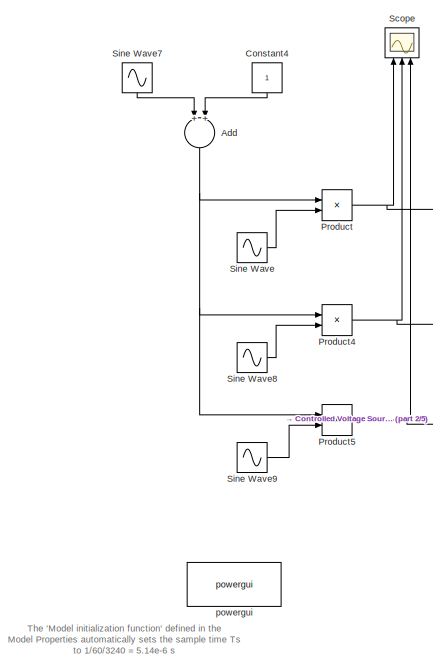
[diagram: root canvas - part 1/5, top left region]
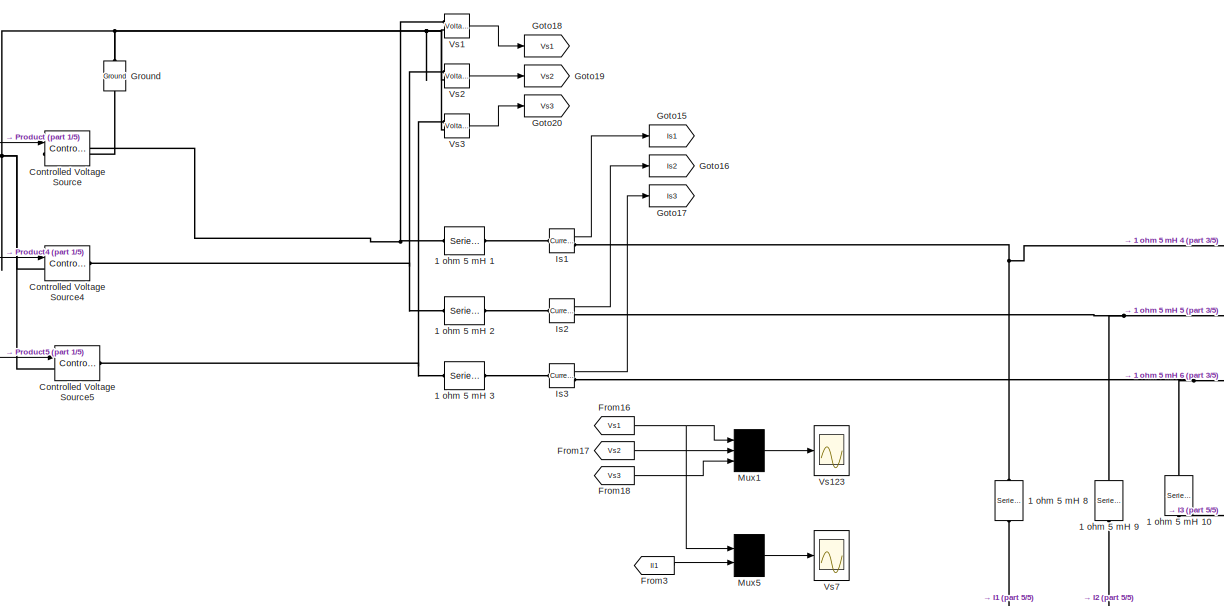
[diagram: root canvas - part 2/5, top center region]
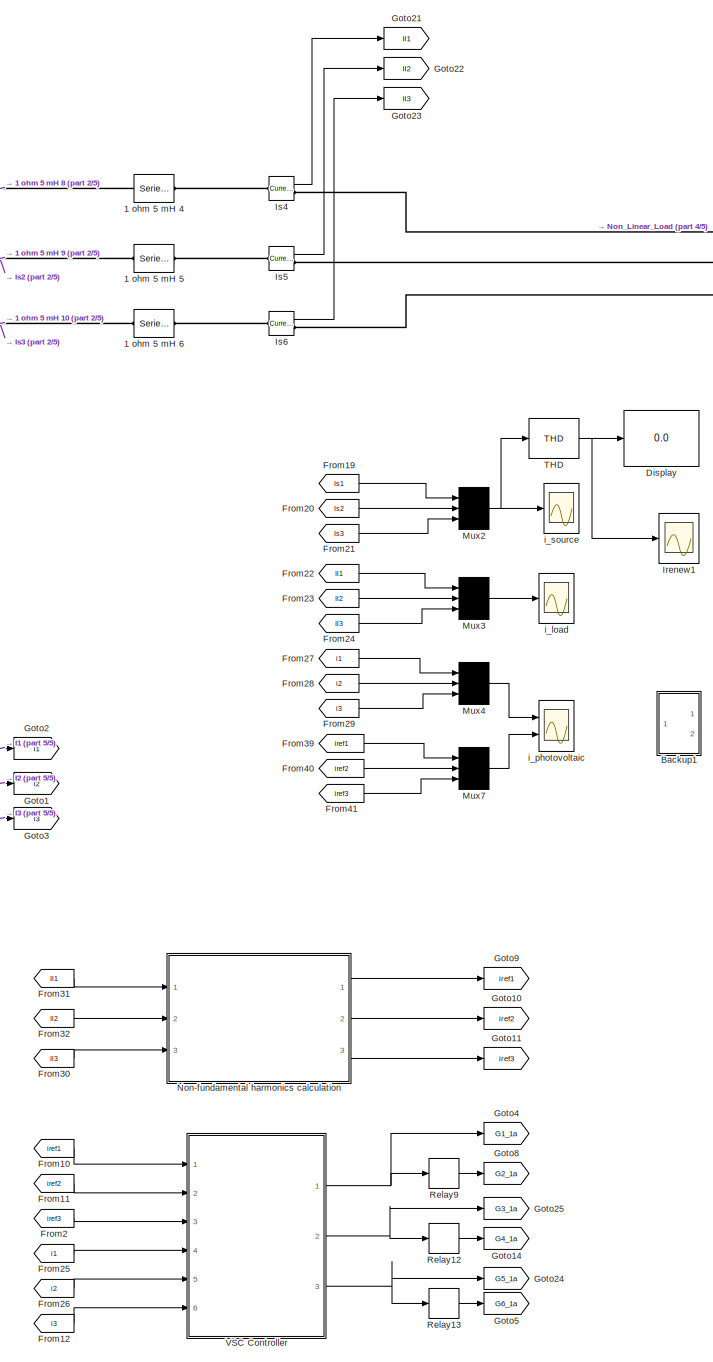
[diagram: root canvas - part 3/5, right side, full height]
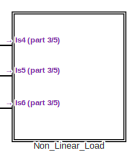
[diagram: root canvas - part 4/5, top right region]
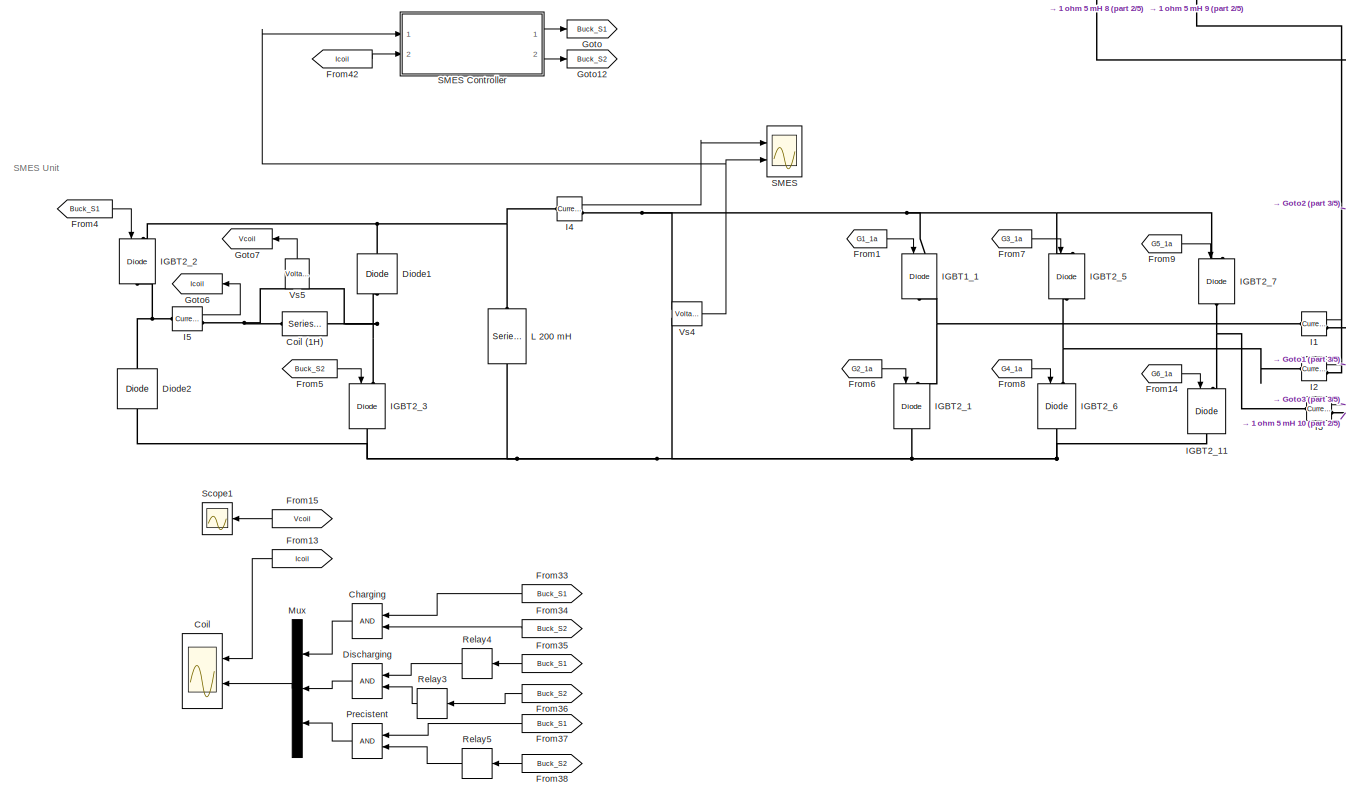
[diagram: root canvas - part 5/5, bottom center region]
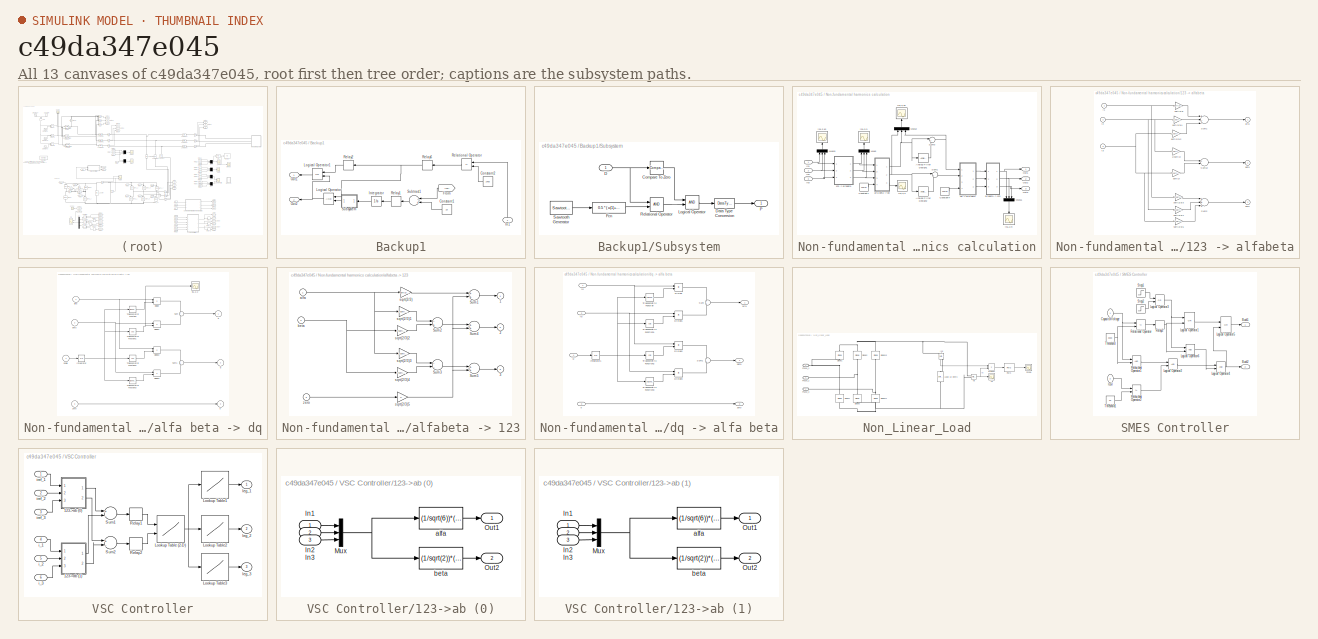
[diagram: thumbnail index - all 13 canvases of the model, root first then tree order]
MODEL slx_c49da347e045
KIND model
CONFIG AbsTol = auto
CONFIG EnableMultiTasking = off
CONFIG FixedStep = auto
CONFIG InitFcn = Ts=1/60/3240;
CONFIG MaxStep = Ts
CONFIG MinStep = auto
CONFIG RelTol = 1e-3
CONFIG SampleTimeConstraint = Unconstrained
CONFIG Solver = ode3
CONFIG SolverName = ode3
CONFIG StartTime = 0.0
CONFIG StopTime = 2
BLOCK [Reference] 1 ohm 5 mH 1  REF=powerlib/Elements/Series RLC Branch
  AttributesFormatString = \n
  Ports = [0, 0, 0, 0, 0, 1, 1]
  SourceBlock = powerlib/Elements/Series RLC Branch
  SourceProductBaseCode = PS
  SourceProductName = Simscape Power Systems
  SourceType = Series RLC Branch
BLOCK [Reference] 1 ohm 5 mH 10  REF=powerlib/Elements/Series RLC Branch
  AttributesFormatString = \n
  Ports = [0, 0, 0, 0, 0, 1, 1]
  SourceBlock = powerlib/Elements/Series RLC Branch
  SourceProductBaseCode = PS
  SourceProductName = Simscape Power Systems
  SourceType = Series RLC Branch
BLOCK [Reference] 1 ohm 5 mH 2  REF=powerlib/Elements/Series RLC Branch
  AttributesFormatString = \n
  Ports = [0, 0, 0, 0, 0, 1, 1]
  SourceBlock = powerlib/Elements/Series RLC Branch
  SourceProductBaseCode = PS
  SourceProductName = Simscape Power Systems
  SourceType = Series RLC Branch
BLOCK [Reference] 1 ohm 5 mH 3  REF=powerlib/Elements/Series RLC Branch
  AttributesFormatString = \n
  Ports = [0, 0, 0, 0, 0, 1, 1]
  SourceBlock = powerlib/Elements/Series RLC Branch
  SourceProductBaseCode = PS
  SourceProductName = Simscape Power Systems
  SourceType = Series RLC Branch
BLOCK [Reference] 1 ohm 5 mH 4  REF=powerlib/Elements/Series RLC Branch
  AttributesFormatString = \n
  Ports = [0, 0, 0, 0, 0, 1, 1]
  SourceBlock = powerlib/Elements/Series RLC Branch
  SourceProductBaseCode = PS
  SourceProductName = Simscape Power Systems
  SourceType = Series RLC Branch
BLOCK [Reference] 1 ohm 5 mH 5  REF=powerlib/Elements/Series RLC Branch
  AttributesFormatString = \n
  Ports = [0, 0, 0, 0, 0, 1, 1]
  SourceBlock = powerlib/Elements/Series RLC Branch
  SourceProductBaseCode = PS
  SourceProductName = Simscape Power Systems
  SourceType = Series RLC Branch
BLOCK [Reference] 1 ohm 5 mH 6  REF=powerlib/Elements/Series RLC Branch
  AttributesFormatString = \n
  Ports = [0, 0, 0, 0, 0, 1, 1]
  SourceBlock = powerlib/Elements/Series RLC Branch
  SourceProductBaseCode = PS
  SourceProductName = Simscape Power Systems
  SourceType = Series RLC Branch
BLOCK [Reference] 1 ohm 5 mH 8  REF=powerlib/Elements/Series RLC Branch
  AttributesFormatString = \n
  Ports = [0, 0, 0, 0, 0, 1, 1]
  SourceBlock = powerlib/Elements/Series RLC Branch
  SourceProductBaseCode = PS
  SourceProductName = Simscape Power Systems
  SourceType = Series RLC Branch
BLOCK [Reference] 1 ohm 5 mH 9  REF=powerlib/Elements/Series RLC Branch
  AttributesFormatString = \n
  Ports = [0, 0, 0, 0, 0, 1, 1]
  SourceBlock = powerlib/Elements/Series RLC Branch
  SourceProductBaseCode = PS
  SourceProductName = Simscape Power Systems
  SourceType = Series RLC Branch
BLOCK [Sum] Add
  InputSameDT = off
  OutDataTypeStr = Inherit: Inherit via internal rule
  Ports = [2, 1]
  SaturateOnIntegerOverflow = off
BLOCK [SubSystem] Backup1
  Ports = [1, 2]
  RequestExecContextInheritance = off
  Variant = off
BLOCK [Constant] Backup1/Constant1
  Value = 10
BLOCK [Constant] Backup1/Constant2
  Value = 1400
BLOCK [From] Backup1/From
  GotoTag = Icoil
BLOCK [Inport] Backup1/In1
  IconDisplay = Port number
BLOCK [Integrator] Backup1/Integrator
  Ports = [1, 1]
BLOCK [Logic] Backup1/Logical Operator
  AllPortsSameDT = off
  Ports = [2, 1]
BLOCK [Logic] Backup1/Logical Operator1
  AllPortsSameDT = off
  Operator = OR
  Ports = [2, 1]
BLOCK [Outport] Backup1/Out1
  IconDisplay = Port number
BLOCK [Outport] Backup1/Out2
  IconDisplay = Port number
  Port = 2
BLOCK [RelationalOperator] Backup1/Relational Operator
  InputSameDT = off
  Operator = <=
  OutDataTypeStr = boolean
  Ports = [2, 1]
  RndMeth = Simplest
BLOCK [Relay] Backup1/Relay1
  OffSwitchValue = -0.1
  OnSwitchValue = 0.1
BLOCK [Relay] Backup1/Relay2
  OffOutputValue = 1
  OffSwitchValue = 0.5
  OnOutputValue = 0
  OnSwitchValue = 0.5
BLOCK [Relay] Backup1/Relay6
  OffSwitchValue = -0.1
  OnSwitchValue = 0.1
BLOCK [SubSystem] Backup1/Subsystem
  Ports = [1, 1]
  RequestExecContextInheritance = off
  Variant = off
BLOCK [Reference] Backup1/Subsystem/Compare To Zero  REF=simulink/Logic and Bit
Operations/Compare
To Zero
  Ports = [1, 1]
  SourceBlock = simulink/Logic and Bit\nOperations/Compare\nTo Zero
  SourceProductBaseCode = SL
  SourceProductName = Simulink
  SourceType = Compare To Zero
BLOCK [Inport] Backup1/Subsystem/D
  IconDisplay = Port number
  SampleTime = Ts
BLOCK [DataTypeConversion] Backup1/Subsystem/Data Type Conversion
  OutDataTypeStr = double
  RndMeth = Floor
  SaturateOnIntegerOverflow = off
BLOCK [Fcn] Backup1/Subsystem/Fcn
  Expr = 0.5 * ( u(1)+1 )
BLOCK [Logic] Backup1/Subsystem/Logical Operator
  AllPortsSameDT = off
  OutDataTypeStr = boolean
  Ports = [2, 1]
BLOCK [Outport] Backup1/Subsystem/P
  IconDisplay = Port number
BLOCK [RelationalOperator] Backup1/Subsystem/Relational Operator
  InputSameDT = off
  OutDataTypeStr = boolean
  Ports = [2, 1]
BLOCK [Reference] Backup1/Subsystem/Sawtooth Generator  REF=powerlib_meascontrol/Pulse & Signal
Generators/Sawtooth
Generator
  Ports = [0, 1]
  SourceBlock = powerlib_meascontrol/Pulse & Signal\nGenerators/Sawtooth\nGenerator
  SourceProductBaseCode = PS
  SourceProductName = Simscape Power Systems
  SourceType = Sawtooth Generator
BLOCK [Sum] Backup1/Subtract1
  InputSameDT = off
  Inputs = -+
  OutDataTypeStr = Inherit: Inherit via internal rule
  Ports = [2, 1]
  SaturateOnIntegerOverflow = off
BLOCK [Logic] Charging
  AllPortsSameDT = off
  Ports = [2, 1]
BLOCK [Scope] Coil
  NumInputPorts = 2
  Ports = [2]
  ScopeSpecificationString = Simulink.scopes.TimeScopeBlockCfg('CurrentConfiguration', extmgr.ConfigurationSet(extmgr.Configuration('Core','General UI',true),extmgr.Configuration('Core','Source UI',true),extmgr.Configuration('Sources','WiredSimulink',true,'DataLogging',true,'DataLoggingVariableName','ScopeData1','DataLoggingSaveFormat','StructureWithTime','DataLoggingMaxPoints','500000','DataLoggingDecimation','1','DataLoggin...<+2737ch>
BLOCK [Reference] Coil (1H)   REF=powerlib/Elements/Series RLC Branch
  AttributesFormatString = \n
  Ports = [0, 0, 0, 0, 0, 1, 1]
  SourceBlock = powerlib/Elements/Series RLC Branch
  SourceProductBaseCode = PS
  SourceProductName = Simscape Power Systems
  SourceType = Series RLC Branch
BLOCK [Constant] Constant4
BLOCK [Reference] Controlled Voltage Source  REF=powerlib/Electrical
Sources/Controlled Voltage Source
  Ports = [1, 0, 0, 0, 0, 1, 1]
  SourceBlock = powerlib/Electrical\nSources/Controlled Voltage Source
  SourceProductBaseCode = PS
  SourceProductName = Simscape Power Systems
  SourceType = Controlled Voltage Source
BLOCK [Reference] Controlled Voltage Source4  REF=powerlib/Electrical
Sources/Controlled Voltage Source
  Ports = [1, 0, 0, 0, 0, 1, 1]
  SourceBlock = powerlib/Electrical\nSources/Controlled Voltage Source
  SourceProductBaseCode = PS
  SourceProductName = Simscape Power Systems
  SourceType = Controlled Voltage Source
BLOCK [Reference] Controlled Voltage Source5  REF=powerlib/Electrical
Sources/Controlled Voltage Source
  Ports = [1, 0, 0, 0, 0, 1, 1]
  SourceBlock = powerlib/Electrical\nSources/Controlled Voltage Source
  SourceProductBaseCode = PS
  SourceProductName = Simscape Power Systems
  SourceType = Controlled Voltage Source
BLOCK [Reference] Diode1  REF=powerlib/Power
Electronics/Diode
  AttributesFormatString = \n
  Ports = [0, 0, 0, 0, 0, 1, 1]
  SourceBlock = powerlib/Power\nElectronics/Diode
  SourceProductBaseCode = PS
  SourceProductName = Simscape Power Systems
  SourceType = Diode
BLOCK [Reference] Diode2  REF=powerlib/Power
Electronics/Diode
  AttributesFormatString = \n
  Ports = [0, 0, 0, 0, 0, 1, 1]
  SourceBlock = powerlib/Power\nElectronics/Diode
  SourceProductBaseCode = PS
  SourceProductName = Simscape Power Systems
  SourceType = Diode
BLOCK [Logic] Discharging
  AllPortsSameDT = off
  Ports = [2, 1]
BLOCK [Display] Display
  Decimation = 1
  Ports = [1]
BLOCK [From] From1
  CloseFcn = tagdialog Close
  GotoTag = G1_1a
BLOCK [From] From10
  CloseFcn = tagdialog Close
  GotoTag = iref1
BLOCK [From] From11
  CloseFcn = tagdialog Close
  GotoTag = iref2
BLOCK [From] From12
  CloseFcn = tagdialog Close
  GotoTag = i3
BLOCK [From] From13
  CloseFcn = tagdialog Close
  GotoTag = Icoil
BLOCK [From] From14
  CloseFcn = tagdialog Close
  GotoTag = G6_1a
BLOCK [From] From15
  CloseFcn = tagdialog Close
  GotoTag = Vcoil
BLOCK [From] From16
  CloseFcn = tagdialog Close
  GotoTag = Vs1
BLOCK [From] From17
  CloseFcn = tagdialog Close
  GotoTag = Vs2
BLOCK [From] From18
  CloseFcn = tagdialog Close
  GotoTag = Vs3
BLOCK [From] From19
  CloseFcn = tagdialog Close
  GotoTag = Is1
BLOCK [From] From2
  CloseFcn = tagdialog Close
  GotoTag = iref3
BLOCK [From] From20
  CloseFcn = tagdialog Close
  GotoTag = Is2
BLOCK [From] From21
  CloseFcn = tagdialog Close
  GotoTag = Is3
BLOCK [From] From22
  CloseFcn = tagdialog Close
  GotoTag = Il1
BLOCK [From] From23
  CloseFcn = tagdialog Close
  GotoTag = Il2
BLOCK [From] From24
  CloseFcn = tagdialog Close
  GotoTag = Il3
BLOCK [From] From25
  CloseFcn = tagdialog Close
  GotoTag = i1
BLOCK [From] From26
  CloseFcn = tagdialog Close
  GotoTag = i2
BLOCK [From] From27
  CloseFcn = tagdialog Close
  GotoTag = i1
BLOCK [From] From28
  CloseFcn = tagdialog Close
  GotoTag = i2
BLOCK [From] From29
  CloseFcn = tagdialog Close
  GotoTag = i3
BLOCK [From] From3
  CloseFcn = tagdialog Close
  GotoTag = Il1
BLOCK [From] From30
  CloseFcn = tagdialog Close
  GotoTag = Il3
BLOCK [From] From31
  CloseFcn = tagdialog Close
  GotoTag = Il1
BLOCK [From] From32
  CloseFcn = tagdialog Close
  GotoTag = Il2
BLOCK [From] From33
  CloseFcn = tagdialog Close
  GotoTag = Buck_S1
BLOCK [From] From34
  CloseFcn = tagdialog Close
  GotoTag = Buck_S2
BLOCK [From] From35
  CloseFcn = tagdialog Close
  GotoTag = Buck_S1
BLOCK [From] From36
  CloseFcn = tagdialog Close
  GotoTag = Buck_S2
BLOCK [From] From37
  CloseFcn = tagdialog Close
  GotoTag = Buck_S1
BLOCK [From] From38
  CloseFcn = tagdialog Close
  GotoTag = Buck_S2
BLOCK [From] From39
  GotoTag = iref1
BLOCK [From] From4
  CloseFcn = tagdialog Close
  GotoTag = Buck_S1
BLOCK [From] From40
  GotoTag = iref2
BLOCK [From] From41
  GotoTag = iref3
BLOCK [From] From42
  CloseFcn = tagdialog Close
  GotoTag = Icoil
BLOCK [From] From5
  CloseFcn = tagdialog Close
  GotoTag = Buck_S2
BLOCK [From] From6
  CloseFcn = tagdialog Close
  GotoTag = G2_1a
BLOCK [From] From7
  CloseFcn = tagdialog Close
  GotoTag = G3_1a
BLOCK [From] From8
  CloseFcn = tagdialog Close
  GotoTag = G4_1a
BLOCK [From] From9
  CloseFcn = tagdialog Close
  GotoTag = G5_1a
BLOCK [Goto] Goto
  GotoTag = Buck_S1
BLOCK [Goto] Goto1
  GotoTag = i2
BLOCK [Goto] Goto10
  GotoTag = iref2
BLOCK [Goto] Goto11
  GotoTag = iref3
BLOCK [Goto] Goto12
  GotoTag = Buck_S2
BLOCK [Goto] Goto14
  GotoTag = G4_1a
BLOCK [Goto] Goto15
  GotoTag = Is1
BLOCK [Goto] Goto16
  GotoTag = Is2
BLOCK [Goto] Goto17
  GotoTag = Is3
BLOCK [Goto] Goto18
  GotoTag = Vs1
BLOCK [Goto] Goto19
  GotoTag = Vs2
BLOCK [Goto] Goto2
  GotoTag = i1
BLOCK [Goto] Goto20
  GotoTag = Vs3
BLOCK [Goto] Goto21
  GotoTag = Il1
BLOCK [Goto] Goto22
  GotoTag = Il2
BLOCK [Goto] Goto23
  GotoTag = Il3
BLOCK [Goto] Goto24
  GotoTag = G5_1a
BLOCK [Goto] Goto25
  GotoTag = G3_1a
BLOCK [Goto] Goto3
  GotoTag = i3
BLOCK [Goto] Goto4
  GotoTag = G1_1a
BLOCK [Goto] Goto5
  GotoTag = G6_1a
BLOCK [Goto] Goto6
  GotoTag = Icoil
BLOCK [Goto] Goto7
  GotoTag = Vcoil
BLOCK [Goto] Goto8
  GotoTag = G2_1a
BLOCK [Goto] Goto9
  GotoTag = iref1
BLOCK [Reference] Ground  REF=powerlib/Elements/Ground
  Ports = [0, 0, 0, 0, 0, 1]
  SourceBlock = powerlib/Elements/Ground
  SourceProductBaseCode = PS
  SourceProductName = Simscape Power Systems
  SourceType = Ground
BLOCK [Reference] I1  REF=powerlib/Measurements/Current Measurement
  AttributesFormatString = \n
  Ports = [0, 1, 0, 0, 0, 1, 1]
  SourceBlock = powerlib/Measurements/Current Measurement
  SourceProductBaseCode = PS
  SourceProductName = Simscape Power Systems
  SourceType = Current Measurement
  Tag = PoWeRsYsTeMmEaSuReMeNt
BLOCK [Reference] I2  REF=powerlib/Measurements/Current Measurement
  AttributesFormatString = \n
  Ports = [0, 1, 0, 0, 0, 1, 1]
  SourceBlock = powerlib/Measurements/Current Measurement
  SourceProductBaseCode = PS
  SourceProductName = Simscape Power Systems
  SourceType = Current Measurement
  Tag = PoWeRsYsTeMmEaSuReMeNt
BLOCK [Reference] I3  REF=powerlib/Measurements/Current Measurement
  AttributesFormatString = \n
  Ports = [0, 1, 0, 0, 0, 1, 1]
  SourceBlock = powerlib/Measurements/Current Measurement
  SourceProductBaseCode = PS
  SourceProductName = Simscape Power Systems
  SourceType = Current Measurement
  Tag = PoWeRsYsTeMmEaSuReMeNt
BLOCK [Reference] I4  REF=powerlib/Measurements/Current Measurement
  AttributesFormatString = \n
  Ports = [0, 1, 0, 0, 0, 1, 1]
  SourceBlock = powerlib/Measurements/Current Measurement
  SourceProductBaseCode = PS
  SourceProductName = Simscape Power Systems
  SourceType = Current Measurement
  Tag = PoWeRsYsTeMmEaSuReMeNt
BLOCK [Reference] I5  REF=powerlib/Measurements/Current Measurement
  AttributesFormatString = \n
  Ports = [0, 1, 0, 0, 0, 1, 1]
  SourceBlock = powerlib/Measurements/Current Measurement
  SourceProductBaseCode = PS
  SourceProductName = Simscape Power Systems
  SourceType = Current Measurement
  Tag = PoWeRsYsTeMmEaSuReMeNt
BLOCK [Reference] IGBT1_1  REF=powerlib/Power
Electronics/IGBT//Diode
  Ports = [1, 0, 0, 0, 0, 1, 1]
  SourceBlock = powerlib/Power\nElectronics/IGBT//Diode
  SourceProductBaseCode = PS
  SourceProductName = Simscape Power Systems
  SourceType = IGBT/Diode
BLOCK [Reference] IGBT2_1  REF=powerlib/Power
Electronics/IGBT//Diode
  Ports = [1, 0, 0, 0, 0, 1, 1]
  SourceBlock = powerlib/Power\nElectronics/IGBT//Diode
  SourceProductBaseCode = PS
  SourceProductName = Simscape Power Systems
  SourceType = IGBT/Diode
BLOCK [Reference] IGBT2_11  REF=powerlib/Power
Electronics/IGBT//Diode
  Ports = [1, 0, 0, 0, 0, 1, 1]
  SourceBlock = powerlib/Power\nElectronics/IGBT//Diode
  SourceProductBaseCode = PS
  SourceProductName = Simscape Power Systems
  SourceType = IGBT/Diode
BLOCK [Reference] IGBT2_2  REF=powerlib/Power
Electronics/IGBT//Diode
  Ports = [1, 0, 0, 0, 0, 1, 1]
  SourceBlock = powerlib/Power\nElectronics/IGBT//Diode
  SourceProductBaseCode = PS
  SourceProductName = Simscape Power Systems
  SourceType = IGBT/Diode
BLOCK [Reference] IGBT2_3  REF=powerlib/Power
Electronics/IGBT//Diode
  Ports = [1, 0, 0, 0, 0, 1, 1]
  SourceBlock = powerlib/Power\nElectronics/IGBT//Diode
  SourceProductBaseCode = PS
  SourceProductName = Simscape Power Systems
  SourceType = IGBT/Diode
BLOCK [Reference] IGBT2_5  REF=powerlib/Power
Electronics/IGBT//Diode
  Ports = [1, 0, 0, 0, 0, 1, 1]
  SourceBlock = powerlib/Power\nElectronics/IGBT//Diode
  SourceProductBaseCode = PS
  SourceProductName = Simscape Power Systems
  SourceType = IGBT/Diode
BLOCK [Reference] IGBT2_6  REF=powerlib/Power
Electronics/IGBT//Diode
  Ports = [1, 0, 0, 0, 0, 1, 1]
  SourceBlock = powerlib/Power\nElectronics/IGBT//Diode
  SourceProductBaseCode = PS
  SourceProductName = Simscape Power Systems
  SourceType = IGBT/Diode
BLOCK [Reference] IGBT2_7  REF=powerlib/Power
Electronics/IGBT//Diode
  Ports = [1, 0, 0, 0, 0, 1, 1]
  SourceBlock = powerlib/Power\nElectronics/IGBT//Diode
  SourceProductBaseCode = PS
  SourceProductName = Simscape Power Systems
  SourceType = IGBT/Diode
BLOCK [Scope] Irenew1
  NumInputPorts = 1
  Ports = [1]
  ScopeSpecificationString = Simulink.scopes.TimeScopeBlockCfg('CurrentConfiguration', extmgr.ConfigurationSet(extmgr.Configuration('Core','General UI',true,'FigureColor',[1 1 1]),extmgr.Configuration('Core','Source UI',true),extmgr.Configuration('Sources','WiredSimulink',true,'DataLoggingVariableName','ScopeData1','DataLoggingSaveFormat','StructureWithTime','DataLoggingMaxPoints','500000','DataLoggingDecimation','1','DataLog...<+2197ch>
BLOCK [Reference] Is1  REF=powerlib/Measurements/Current Measurement
  AttributesFormatString = \n
  Ports = [0, 1, 0, 0, 0, 1, 1]
  SourceBlock = powerlib/Measurements/Current Measurement
  SourceProductBaseCode = PS
  SourceProductName = Simscape Power Systems
  SourceType = Current Measurement
  Tag = PoWeRsYsTeMmEaSuReMeNt
BLOCK [Reference] Is2  REF=powerlib/Measurements/Current Measurement
  AttributesFormatString = \n
  Ports = [0, 1, 0, 0, 0, 1, 1]
  SourceBlock = powerlib/Measurements/Current Measurement
  SourceProductBaseCode = PS
  SourceProductName = Simscape Power Systems
  SourceType = Current Measurement
  Tag = PoWeRsYsTeMmEaSuReMeNt
BLOCK [Reference] Is3  REF=powerlib/Measurements/Current Measurement
  AttributesFormatString = \n
  Ports = [0, 1, 0, 0, 0, 1, 1]
  SourceBlock = powerlib/Measurements/Current Measurement
  SourceProductBaseCode = PS
  SourceProductName = Simscape Power Systems
  SourceType = Current Measurement
  Tag = PoWeRsYsTeMmEaSuReMeNt
BLOCK [Reference] Is4  REF=powerlib/Measurements/Current Measurement
  AttributesFormatString = \n
  Ports = [0, 1, 0, 0, 0, 1, 1]
  SourceBlock = powerlib/Measurements/Current Measurement
  SourceProductBaseCode = PS
  SourceProductName = Simscape Power Systems
  SourceType = Current Measurement
  Tag = PoWeRsYsTeMmEaSuReMeNt
BLOCK [Reference] Is5  REF=powerlib/Measurements/Current Measurement
  AttributesFormatString = \n
  Ports = [0, 1, 0, 0, 0, 1, 1]
  SourceBlock = powerlib/Measurements/Current Measurement
  SourceProductBaseCode = PS
  SourceProductName = Simscape Power Systems
  SourceType = Current Measurement
  Tag = PoWeRsYsTeMmEaSuReMeNt
BLOCK [Reference] Is6  REF=powerlib/Measurements/Current Measurement
  AttributesFormatString = \n
  Ports = [0, 1, 0, 0, 0, 1, 1]
  SourceBlock = powerlib/Measurements/Current Measurement
  SourceProductBaseCode = PS
  SourceProductName = Simscape Power Systems
  SourceType = Current Measurement
  Tag = PoWeRsYsTeMmEaSuReMeNt
BLOCK [Reference] L 200 mH  REF=powerlib/Elements/Series RLC Branch
  AttributesFormatString = \n
  Ports = [0, 0, 0, 0, 0, 1, 1]
  SourceBlock = powerlib/Elements/Series RLC Branch
  SourceProductBaseCode = PS
  SourceProductName = Simscape Power Systems
  SourceType = Series RLC Branch
BLOCK [Mux] Mux
  DisplayOption = bar
  Inputs = 3
  Ports = [3, 1]
BLOCK [Mux] Mux1
  Inputs = 3
  Ports = [3, 1]
BLOCK [Mux] Mux2
  Inputs = 3
  Ports = [3, 1]
BLOCK [Mux] Mux3
  Inputs = 3
  Ports = [3, 1]
BLOCK [Mux] Mux4
  Inputs = 3
  Ports = [3, 1]
BLOCK [Mux] Mux5
  Inputs = 2
  Ports = [2, 1]
BLOCK [Mux] Mux7
  Inputs = 3
  Ports = [3, 1]
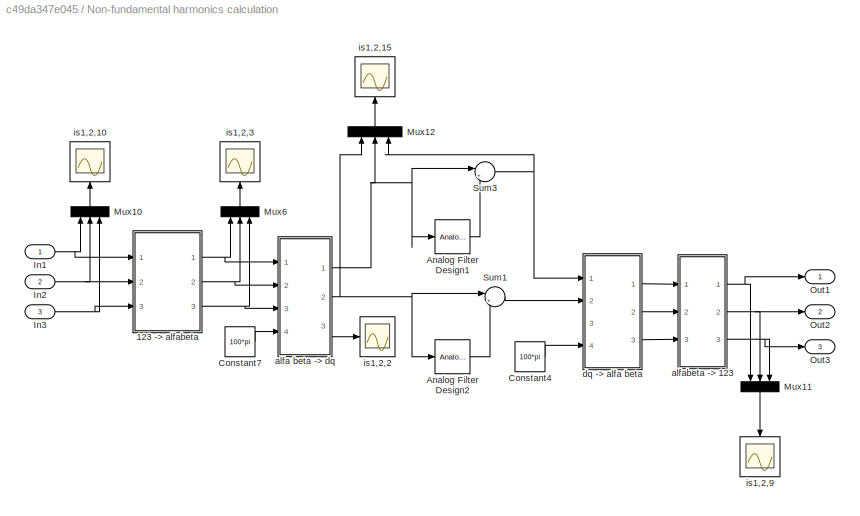
BLOCK [SubSystem] Non-fundamental harmonics calculation
  Ports = [3, 3]
  RequestExecContextInheritance = off
  Variant = off
BLOCK [SubSystem] Non-fundamental harmonics calculation/123 -> alfabeta
  Ports = [3, 3]
  RequestExecContextInheritance = off
  Variant = off
BLOCK [Gain] Non-fundamental harmonics calculation/123 -> alfabeta/1//sqrt(2)
  Gain = 1/sqrt(2)
BLOCK [Sum] Non-fundamental harmonics calculation/123 -> alfabeta/Sum1
  Inputs = +--
  Ports = [3, 1]
BLOCK [Sum] Non-fundamental harmonics calculation/123 -> alfabeta/Sum12
  Inputs = +-
  Ports = [2, 1]
BLOCK [Sum] Non-fundamental harmonics calculation/123 -> alfabeta/Sum2
  Inputs = +++
  Ports = [3, 1]
BLOCK [Outport] Non-fundamental harmonics calculation/123 -> alfabeta/alfa
  IconDisplay = Port number
  InitialOutput = 0
BLOCK [Outport] Non-fundamental harmonics calculation/123 -> alfabeta/beta
  IconDisplay = Port number
  InitialOutput = 0
  Port = 2
BLOCK [Inport] Non-fundamental harmonics calculation/123 -> alfabeta/i1
  IconDisplay = Port number
BLOCK [Inport] Non-fundamental harmonics calculation/123 -> alfabeta/i2
  IconDisplay = Port number
  Port = 2
BLOCK [Inport] Non-fundamental harmonics calculation/123 -> alfabeta/i3
  IconDisplay = Port number
  Port = 3
BLOCK [Gain] Non-fundamental harmonics calculation/123 -> alfabeta/sqrt(2)
  Gain = 1/sqrt(2)
BLOCK [Gain] Non-fundamental harmonics calculation/123 -> alfabeta/sqrt(2//3)
  Gain = sqrt(2/3)
BLOCK [Gain] Non-fundamental harmonics calculation/123 -> alfabeta/sqrt(2//3)1
  Gain = 1/sqrt(6)
BLOCK [Gain] Non-fundamental harmonics calculation/123 -> alfabeta/sqrt(2//3)2
  Gain = 1/sqrt(6)
BLOCK [Gain] Non-fundamental harmonics calculation/123 -> alfabeta/sqrt(2//3)3
  Gain = 1/sqrt(6)
BLOCK [Gain] Non-fundamental harmonics calculation/123 -> alfabeta/sqrt(2//3)4
  Gain = 1/sqrt(6)
BLOCK [Gain] Non-fundamental harmonics calculation/123 -> alfabeta/sqrt(2//3)5
  Gain = 1/sqrt(6)
BLOCK [Outport] Non-fundamental harmonics calculation/123 -> alfabeta/zero
  IconDisplay = Port number
  InitialOutput = 0
  Port = 3
BLOCK [Reference] Non-fundamental harmonics calculation/Analog Filter Design1  REF=dsparch4/Analog
Filter Design
  Ports = [1, 1]
  SourceBlock = dsparch4/Analog\nFilter Design
  SourceProductBaseCode = DS
  SourceProductName = DSP System Toolbox
  SourceType = Analog Filter Design
BLOCK [Reference] Non-fundamental harmonics calculation/Analog Filter Design2  REF=dsparch4/Analog
Filter Design
  Ports = [1, 1]
  SourceBlock = dsparch4/Analog\nFilter Design
  SourceProductBaseCode = DS
  SourceProductName = DSP System Toolbox
  SourceType = Analog Filter Design
BLOCK [Constant] Non-fundamental harmonics calculation/Constant4
  Value = 100*pi
BLOCK [Constant] Non-fundamental harmonics calculation/Constant7
  Value = 100*pi
BLOCK [Inport] Non-fundamental harmonics calculation/In1
  IconDisplay = Port number
BLOCK [Inport] Non-fundamental harmonics calculation/In2
  IconDisplay = Port number
  Port = 2
BLOCK [Inport] Non-fundamental harmonics calculation/In3
  IconDisplay = Port number
  Port = 3
BLOCK [Mux] Non-fundamental harmonics calculation/Mux10
  DisplayOption = bar
  Inputs = 3
  Ports = [3, 1]
BLOCK [Mux] Non-fundamental harmonics calculation/Mux11
  DisplayOption = bar
  Inputs = 3
  Ports = [3, 1]
BLOCK [Mux] Non-fundamental harmonics calculation/Mux12
  DisplayOption = bar
  Inputs = 3
  Ports = [3, 1]
BLOCK [Mux] Non-fundamental harmonics calculation/Mux6
  DisplayOption = bar
  Inputs = 3
  Ports = [3, 1]
BLOCK [Outport] Non-fundamental harmonics calculation/Out1
  IconDisplay = Port number
BLOCK [Outport] Non-fundamental harmonics calculation/Out2
  IconDisplay = Port number
  Port = 2
BLOCK [Outport] Non-fundamental harmonics calculation/Out3
  IconDisplay = Port number
  Port = 3
BLOCK [Sum] Non-fundamental harmonics calculation/Sum1
  IconShape = round
  InputSameDT = off
  Inputs = |+-
  OutDataTypeStr = Inherit: Inherit via internal rule
  Ports = [2, 1]
  SaturateOnIntegerOverflow = off
BLOCK [Sum] Non-fundamental harmonics calculation/Sum3
  IconShape = round
  InputSameDT = off
  Inputs = |+-
  OutDataTypeStr = Inherit: Inherit via internal rule
  Ports = [2, 1]
  SaturateOnIntegerOverflow = off
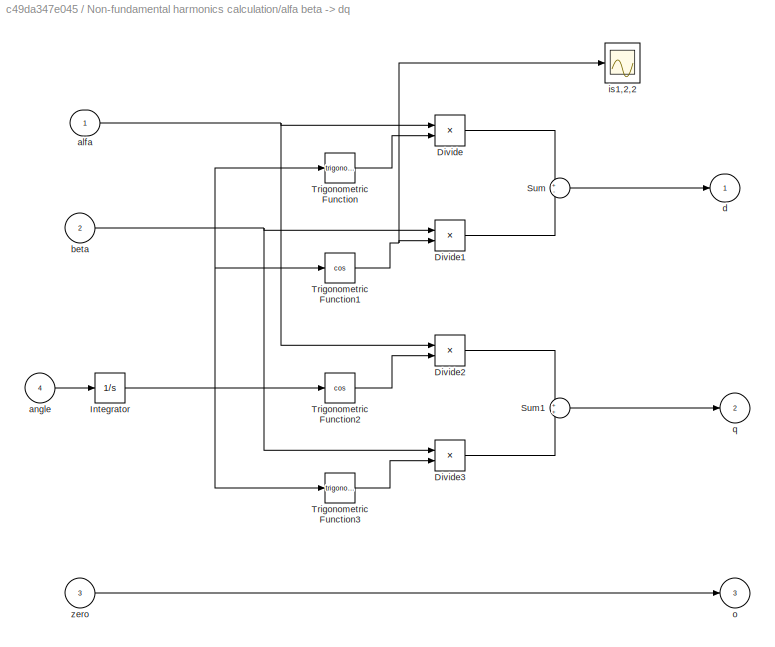
BLOCK [SubSystem] Non-fundamental harmonics calculation/alfa beta -> dq
  Ports = [4, 3]
  RequestExecContextInheritance = off
  Variant = off
BLOCK [Product] Non-fundamental harmonics calculation/alfa beta -> dq/Divide
  InputSameDT = off
  Inputs = **
  OutDataTypeStr = Inherit: Inherit via internal rule
  Ports = [2, 1]
  RndMeth = Floor
  SaturateOnIntegerOverflow = off
BLOCK [Product] Non-fundamental harmonics calculation/alfa beta -> dq/Divide1
  InputSameDT = off
  Inputs = **
  OutDataTypeStr = Inherit: Inherit via internal rule
  Ports = [2, 1]
  RndMeth = Floor
  SaturateOnIntegerOverflow = off
BLOCK [Product] Non-fundamental harmonics calculation/alfa beta -> dq/Divide2
  InputSameDT = off
  Inputs = **
  OutDataTypeStr = Inherit: Inherit via internal rule
  Ports = [2, 1]
  RndMeth = Floor
  SaturateOnIntegerOverflow = off
BLOCK [Product] Non-fundamental harmonics calculation/alfa beta -> dq/Divide3
  InputSameDT = off
  Inputs = **
  OutDataTypeStr = Inherit: Inherit via internal rule
  Ports = [2, 1]
  RndMeth = Floor
  SaturateOnIntegerOverflow = off
BLOCK [Integrator] Non-fundamental harmonics calculation/alfa beta -> dq/Integrator
  Ports = [1, 1]
BLOCK [Sum] Non-fundamental harmonics calculation/alfa beta -> dq/Sum
  IconShape = round
  InputSameDT = off
  Inputs = +-
  OutDataTypeStr = Inherit: Inherit via internal rule
  Ports = [2, 1]
  SaturateOnIntegerOverflow = off
BLOCK [Sum] Non-fundamental harmonics calculation/alfa beta -> dq/Sum1
  IconShape = round
  InputSameDT = off
  OutDataTypeStr = Inherit: Inherit via internal rule
  Ports = [2, 1]
  SaturateOnIntegerOverflow = off
BLOCK [Trigonometry] Non-fundamental harmonics calculation/alfa beta -> dq/Trigonometric Function
  Ports = [1, 1]
BLOCK [Trigonometry] Non-fundamental harmonics calculation/alfa beta -> dq/Trigonometric Function1
  Operator = cos
  Ports = [1, 1]
BLOCK [Trigonometry] Non-fundamental harmonics calculation/alfa beta -> dq/Trigonometric Function2
  Operator = cos
  Ports = [1, 1]
BLOCK [Trigonometry] Non-fundamental harmonics calculation/alfa beta -> dq/Trigonometric Function3
  Ports = [1, 1]
BLOCK [Inport] Non-fundamental harmonics calculation/alfa beta -> dq/alfa
  IconDisplay = Port number
BLOCK [Inport] Non-fundamental harmonics calculation/alfa beta -> dq/angle
  IconDisplay = Port number
  Port = 4
BLOCK [Inport] Non-fundamental harmonics calculation/alfa beta -> dq/beta
  IconDisplay = Port number
  Port = 2
BLOCK [Outport] Non-fundamental harmonics calculation/alfa beta -> dq/d
  IconDisplay = Port number
  InitialOutput = 0
BLOCK [Scope] Non-fundamental harmonics calculation/alfa beta -> dq/is1,2,2
  NumInputPorts = 1
  Ports = [1]
  ScopeSpecificationString = C++SS(StrPVP('Location','[310, 192, 705, 467]'),StrPVP('Open','off'),StrPVP('TickLabels','on'),MxPVP('AxesTitles',53,'struct(''axes1'',''%<SignalLabel>'')'),MxPVP('ScopeGraphics',56,'struct(''FigureColor'',''[0.5 0.5 0.5]'',''AxesColor'',''[0 0 0]'',''AxesTickColor'',''[1 1 1]'',''LineColors'',''[1 1 0;1 0 1;0 1 1;1 0 0;0 1 0;0 0 1]'',''LineStyles'',''-|-|-|-|-|-'',''LineWidths'',''[0.5 0.5 0.5 0....<+353ch>
BLOCK [Outport] Non-fundamental harmonics calculation/alfa beta -> dq/o
  IconDisplay = Port number
  InitialOutput = 0
  Port = 3
BLOCK [Outport] Non-fundamental harmonics calculation/alfa beta -> dq/q
  IconDisplay = Port number
  InitialOutput = 0
  Port = 2
BLOCK [Inport] Non-fundamental harmonics calculation/alfa beta -> dq/zero
  IconDisplay = Port number
  Port = 3
BLOCK [SubSystem] Non-fundamental harmonics calculation/alfabeta -> 123
  Ports = [3, 3]
  RequestExecContextInheritance = off
  Variant = off
BLOCK [Outport] Non-fundamental harmonics calculation/alfabeta -> 123/1
  IconDisplay = Port number
  InitialOutput = 0
BLOCK [Outport] Non-fundamental harmonics calculation/alfabeta -> 123/2
  IconDisplay = Port number
  InitialOutput = 0
  Port = 2
BLOCK [Outport] Non-fundamental harmonics calculation/alfabeta -> 123/3
  IconDisplay = Port number
  InitialOutput = 0
  Port = 3
BLOCK [Sum] Non-fundamental harmonics calculation/alfabeta -> 123/Sum1
  Ports = [2, 1]
BLOCK [Sum] Non-fundamental harmonics calculation/alfabeta -> 123/Sum2
  Inputs = -+
  Ports = [2, 1]
BLOCK [Sum] Non-fundamental harmonics calculation/alfabeta -> 123/Sum3
  Inputs = --
  Ports = [2, 1]
BLOCK [Sum] Non-fundamental harmonics calculation/alfabeta -> 123/Sum4
  Ports = [2, 1]
BLOCK [Sum] Non-fundamental harmonics calculation/alfabeta -> 123/Sum5
  Ports = [2, 1]
BLOCK [Inport] Non-fundamental harmonics calculation/alfabeta -> 123/alfa
  IconDisplay = Port number
BLOCK [Inport] Non-fundamental harmonics calculation/alfabeta -> 123/beta
  IconDisplay = Port number
  Port = 2
BLOCK [Gain] Non-fundamental harmonics calculation/alfabeta -> 123/sqrt(2//3)
  Gain = sqrt(2/3)
BLOCK [Gain] Non-fundamental harmonics calculation/alfabeta -> 123/sqrt(2//3)1
  Gain = 1/sqrt(6)
BLOCK [Gain] Non-fundamental harmonics calculation/alfabeta -> 123/sqrt(2//3)2
  Gain = 1/sqrt(2)
BLOCK [Gain] Non-fundamental harmonics calculation/alfabeta -> 123/sqrt(2//3)3
  Gain = 1/sqrt(6)
BLOCK [Gain] Non-fundamental harmonics calculation/alfabeta -> 123/sqrt(2//3)4
  Gain = 1/sqrt(2)
BLOCK [Gain] Non-fundamental harmonics calculation/alfabeta -> 123/sqrt(2//3)5
BLOCK [Inport] Non-fundamental harmonics calculation/alfabeta -> 123/zero
  IconDisplay = Port number
  Port = 3
BLOCK [SubSystem] Non-fundamental harmonics calculation/dq -> alfa beta
  Ports = [4, 3]
  RequestExecContextInheritance = off
  Variant = off
BLOCK [Product] Non-fundamental harmonics calculation/dq -> alfa beta/Divide
  InputSameDT = off
  Inputs = **
  OutDataTypeStr = Inherit: Inherit via internal rule
  Ports = [2, 1]
  RndMeth = Floor
  SaturateOnIntegerOverflow = off
BLOCK [Product] Non-fundamental harmonics calculation/dq -> alfa beta/Divide1
  InputSameDT = off
  Inputs = **
  OutDataTypeStr = Inherit: Inherit via internal rule
  Ports = [2, 1]
  RndMeth = Floor
  SaturateOnIntegerOverflow = off
BLOCK [Product] Non-fundamental harmonics calculation/dq -> alfa beta/Divide2
  InputSameDT = off
  Inputs = **
  OutDataTypeStr = Inherit: Inherit via internal rule
  Ports = [2, 1]
  RndMeth = Floor
  SaturateOnIntegerOverflow = off
BLOCK [Product] Non-fundamental harmonics calculation/dq -> alfa beta/Divide3
  InputSameDT = off
  Inputs = **
  OutDataTypeStr = Inherit: Inherit via internal rule
  Ports = [2, 1]
  RndMeth = Floor
  SaturateOnIntegerOverflow = off
BLOCK [Integrator] Non-fundamental harmonics calculation/dq -> alfa beta/Integrator1
  Ports = [1, 1]
BLOCK [Sum] Non-fundamental harmonics calculation/dq -> alfa beta/Sum
  IconShape = round
  InputSameDT = off
  OutDataTypeStr = Inherit: Inherit via internal rule
  Ports = [2, 1]
  SaturateOnIntegerOverflow = off
BLOCK [Sum] Non-fundamental harmonics calculation/dq -> alfa beta/Sum1
  IconShape = round
  InputSameDT = off
  Inputs = -+
  OutDataTypeStr = Inherit: Inherit via internal rule
  Ports = [2, 1]
  SaturateOnIntegerOverflow = off
BLOCK [Trigonometry] Non-fundamental harmonics calculation/dq -> alfa beta/Trigonometric Function
  Ports = [1, 1]
BLOCK [Trigonometry] Non-fundamental harmonics calculation/dq -> alfa beta/Trigonometric Function1
  Operator = cos
  Ports = [1, 1]
BLOCK [Trigonometry] Non-fundamental harmonics calculation/dq -> alfa beta/Trigonometric Function2
  Operator = cos
  Ports = [1, 1]
BLOCK [Trigonometry] Non-fundamental harmonics calculation/dq -> alfa beta/Trigonometric Function3
  Ports = [1, 1]
BLOCK [Outport] Non-fundamental harmonics calculation/dq -> alfa beta/alfa
  IconDisplay = Port number
BLOCK [Outport] Non-fundamental harmonics calculation/dq -> alfa beta/beta
  IconDisplay = Port number
  Port = 2
BLOCK [Inport] Non-fundamental harmonics calculation/dq -> alfa beta/id
  IconDisplay = Port number
BLOCK [Inport] Non-fundamental harmonics calculation/dq -> alfa beta/iq
  IconDisplay = Port number
  Port = 2
BLOCK [Inport] Non-fundamental harmonics calculation/dq -> alfa beta/o
  IconDisplay = Port number
  Port = 3
BLOCK [Inport] Non-fundamental harmonics calculation/dq -> alfa beta/w
  IconDisplay = Port number
  Port = 4
BLOCK [Outport] Non-fundamental harmonics calculation/dq -> alfa beta/zero
  IconDisplay = Port number
  Port = 3
BLOCK [Scope] Non-fundamental harmonics calculation/is1,2,10
  NumInputPorts = 1
  Ports = [1]
  ScopeSpecificationString = Simulink.scopes.TimeScopeBlockCfg('CurrentConfiguration', extmgr.ConfigurationSet(extmgr.Configuration('Core','General UI',true),extmgr.Configuration('Core','Source UI',true),extmgr.Configuration('Sources','WiredSimulink',true,'DataLoggingVariableName','ScopeData4','DataLoggingSaveFormat','Array','DataLoggingDecimation','1','DataLoggingDecimateData',true),extmgr.Configuration('Visuals','Time Domai...<+1799ch>
BLOCK [Scope] Non-fundamental harmonics calculation/is1,2,15
  NumInputPorts = 1
  Ports = [1]
  ScopeSpecificationString = Simulink.scopes.TimeScopeBlockCfg('CurrentConfiguration', extmgr.ConfigurationSet(extmgr.Configuration('Core','General UI',true),extmgr.Configuration('Core','Source UI',true),extmgr.Configuration('Sources','WiredSimulink',true,'DataLoggingVariableName','ScopeData8','DataLoggingSaveFormat','Array','DataLoggingDecimation','1','DataLoggingDecimateData',true),extmgr.Configuration('Visuals','Time Domai...<+1830ch>
BLOCK [Scope] Non-fundamental harmonics calculation/is1,2,2
  NumInputPorts = 1
  Ports = [1]
  ScopeSpecificationString = Simulink.scopes.TimeScopeBlockCfg('CurrentConfiguration', extmgr.ConfigurationSet(extmgr.Configuration('Core','General UI',true),extmgr.Configuration('Core','Source UI',true),extmgr.Configuration('Sources','WiredSimulink',true,'DataLoggingVariableName','ScopeData9','DataLoggingSaveFormat','Array','DataLoggingDecimation','1','DataLoggingDecimateData',true),extmgr.Configuration('Visuals','Time Domai...<+1760ch>
BLOCK [Scope] Non-fundamental harmonics calculation/is1,2,3
  NumInputPorts = 1
  Ports = [1]
  ScopeSpecificationString = Simulink.scopes.TimeScopeBlockCfg('CurrentConfiguration', extmgr.ConfigurationSet(extmgr.Configuration('Core','General UI',true),extmgr.Configuration('Core','Source UI',true),extmgr.Configuration('Sources','WiredSimulink',true,'DataLoggingVariableName','ScopeData1','DataLoggingSaveFormat','Array','DataLoggingDecimation','1','DataLoggingDecimateData',true),extmgr.Configuration('Visuals','Time Domai...<+1721ch>
BLOCK [Scope] Non-fundamental harmonics calculation/is1,2,9
  NumInputPorts = 1
  Ports = [1]
  ScopeSpecificationString = Simulink.scopes.TimeScopeBlockCfg('CurrentConfiguration', extmgr.ConfigurationSet(extmgr.Configuration('Core','General UI',true),extmgr.Configuration('Core','Source UI',true),extmgr.Configuration('Sources','WiredSimulink',true,'DataLoggingVariableName','ScopeData10','DataLoggingSaveFormat','Array','DataLoggingDecimation','1','DataLoggingDecimateData',true),extmgr.Configuration('Visuals','Time Doma...<+1845ch>
BLOCK [SubSystem] Non_Linear_Load
  Ports = [0, 0, 0, 0, 0, 3]
  RequestExecContextInheritance = off
  Variant = off
BLOCK [Reference] Non_Linear_Load/Diode1  REF=powerlib/Power
Electronics/Diode
  AttributesFormatString = \n
  Ports = [0, 0, 0, 0, 0, 1, 1]
  SourceBlock = powerlib/Power\nElectronics/Diode
  SourceProductBaseCode = PS
  SourceProductName = Simscape Power Systems
  SourceType = Diode
BLOCK [Reference] Non_Linear_Load/Diode13  REF=powerlib/Power
Electronics/Diode
  AttributesFormatString = \n
  Ports = [0, 0, 0, 0, 0, 1, 1]
  SourceBlock = powerlib/Power\nElectronics/Diode
  SourceProductBaseCode = PS
  SourceProductName = Simscape Power Systems
  SourceType = Diode
BLOCK [Reference] Non_Linear_Load/Diode14  REF=powerlib/Power
Electronics/Diode
  AttributesFormatString = \n
  Ports = [0, 0, 0, 0, 0, 1, 1]
  SourceBlock = powerlib/Power\nElectronics/Diode
  SourceProductBaseCode = PS
  SourceProductName = Simscape Power Systems
  SourceType = Diode
BLOCK [Reference] Non_Linear_Load/Diode2  REF=powerlib/Power
Electronics/Diode
  AttributesFormatString = \n
  Ports = [0, 0, 0, 0, 0, 1, 1]
  SourceBlock = powerlib/Power\nElectronics/Diode
  SourceProductBaseCode = PS
  SourceProductName = Simscape Power Systems
  SourceType = Diode
BLOCK [Reference] Non_Linear_Load/Diode4  REF=powerlib/Power
Electronics/Diode
  AttributesFormatString = \n
  Ports = [0, 0, 0, 0, 0, 1, 1]
  SourceBlock = powerlib/Power\nElectronics/Diode
  SourceProductBaseCode = PS
  SourceProductName = Simscape Power Systems
  SourceType = Diode
BLOCK [Reference] Non_Linear_Load/Diode5  REF=powerlib/Power
Electronics/Diode
  AttributesFormatString = \n
  Ports = [0, 0, 0, 0, 0, 1, 1]
  SourceBlock = powerlib/Power\nElectronics/Diode
  SourceProductBaseCode = PS
  SourceProductName = Simscape Power Systems
  SourceType = Diode
BLOCK [Reference] Non_Linear_Load/Is6  REF=powerlib/Measurements/Current Measurement
  AttributesFormatString = \n
  Ports = [0, 1, 0, 0, 0, 1, 1]
  SourceBlock = powerlib/Measurements/Current Measurement
  SourceProductBaseCode = PS
  SourceProductName = Simscape Power Systems
  SourceType = Current Measurement
  Tag = PoWeRsYsTeMmEaSuReMeNt
BLOCK [Reference] Non_Linear_Load/Load 10 Ohms  REF=powerlib/Elements/Series RLC Branch
  AttributesFormatString = \n
  Ports = [0, 0, 0, 0, 0, 1, 1]
  SourceBlock = powerlib/Elements/Series RLC Branch
  SourceProductBaseCode = PS
  SourceProductName = Simscape Power Systems
  SourceType = Series RLC Branch
BLOCK [PMIOPort] Non_Linear_Load/Phase_1
  Port = 1
  Side = Left
BLOCK [PMIOPort] Non_Linear_Load/Phase_2
  Port = 2
  Side = Left
BLOCK [PMIOPort] Non_Linear_Load/Phase_3
  Port = 3
  Side = Left
BLOCK [Product] Non_Linear_Load/Product
  InputSameDT = off
  OutDataTypeStr = Inherit: Inherit via internal rule
  Ports = [2, 1]
  RndMeth = Floor
  SaturateOnIntegerOverflow = off
BLOCK [Reference] Non_Linear_Load/RMS  REF=powerlib_meascontrol/Measurements/RMS
  Ports = [1, 1]
  SourceBlock = powerlib_meascontrol/Measurements/RMS
  SourceProductBaseCode = PS
  SourceProductName = Simscape Power Systems
  SourceType = RMS
BLOCK [Scope] Non_Linear_Load/Scope
  NumInputPorts = 1
  Ports = [1]
  ScopeSpecificationString = Simulink.scopes.TimeScopeBlockCfg('CurrentConfiguration', extmgr.ConfigurationSet(extmgr.Configuration('Core','General UI',true),extmgr.Configuration('Core','Source UI',true),extmgr.Configuration('Sources','WiredSimulink',true,'DataLoggingVariableName','ScopeData1'),extmgr.Configuration('Visuals','Time Domain',true,'SerializedDisplays',{struct('MinYLimReal','-867.02428','MaxYLimReal','9003.21854',...<+1434ch>
BLOCK [Reference] Non_Linear_Load/Vd  REF=powerlib/Measurements/Voltage Measurement
  AttributesFormatString = \n
  Ports = [0, 1, 0, 0, 0, 2]
  SourceBlock = powerlib/Measurements/Voltage Measurement
  SourceProductBaseCode = PS
  SourceProductName = Simscape Power Systems
  SourceType = Voltage Measurement
  Tag = PoWeRsYsTeMmEaSuReMeNt
BLOCK [Scope] Non_Linear_Load/vo
  NumInputPorts = 1
  Ports = [1]
  ScopeSpecificationString = Simulink.scopes.TimeScopeBlockCfg('CurrentConfiguration', extmgr.ConfigurationSet(extmgr.Configuration('Core','General UI',true),extmgr.Configuration('Core','Source UI',true),extmgr.Configuration('Sources','WiredSimulink',true,'DataLoggingVariableName','ScopeData2','DataLoggingSaveFormat','StructureWithTime','DataLoggingLimitDataPoints',true,'DataLoggingDecimation','1','DataLoggingDecimateData',tr...<+1836ch>
BLOCK [Logic] Precistent
  AllPortsSameDT = off
  Ports = [2, 1]
BLOCK [Product] Product
  InputSameDT = off
  OutDataTypeStr = Inherit: Inherit via internal rule
  Ports = [2, 1]
  RndMeth = Floor
  SaturateOnIntegerOverflow = off
BLOCK [Product] Product4
  InputSameDT = off
  OutDataTypeStr = Inherit: Inherit via internal rule
  Ports = [2, 1]
  RndMeth = Floor
  SaturateOnIntegerOverflow = off
BLOCK [Product] Product5
  InputSameDT = off
  OutDataTypeStr = Inherit: Inherit via internal rule
  Ports = [2, 1]
  RndMeth = Floor
  SaturateOnIntegerOverflow = off
BLOCK [Relay] Relay12
  OffOutputValue = 1
  OffSwitchValue = 0.5
  OnOutputValue = 0
  OnSwitchValue = 0.5
BLOCK [Relay] Relay13
  OffOutputValue = 1
  OffSwitchValue = 0.5
  OnOutputValue = 0
  OnSwitchValue = 0.5
BLOCK [Relay] Relay3
  OffOutputValue = 1
  OffSwitchValue = 0.5
  OnOutputValue = 0
  OnSwitchValue = 0.5
BLOCK [Relay] Relay4
  OffOutputValue = 1
  OffSwitchValue = 0.5
  OnOutputValue = 0
  OnSwitchValue = 0.5
BLOCK [Relay] Relay5
  OffOutputValue = 1
  OffSwitchValue = 0.5
  OnOutputValue = 0
  OnSwitchValue = 0.5
BLOCK [Relay] Relay9
  OffOutputValue = 1
  OffSwitchValue = 0.5
  OnOutputValue = 0
  OnSwitchValue = 0.5
BLOCK [Scope] SMES 
  NumInputPorts = 2
  Ports = [2]
  ScopeSpecificationString = Simulink.scopes.TimeScopeBlockCfg('CurrentConfiguration', extmgr.ConfigurationSet(extmgr.Configuration('Core','General UI',true),extmgr.Configuration('Core','Source UI',true),extmgr.Configuration('Sources','WiredSimulink',true,'DataLogging',true,'DataLoggingVariableName','sps1phPWM2_str7','DataLoggingSaveFormat','StructureWithTime','DataLoggingMaxPoints','500000','DataLoggingDecimation','1','DataL...<+2272ch>
BLOCK [SubSystem] SMES Controller
  Ports = [2, 2]
  RequestExecContextInheritance = off
  Variant = off
BLOCK [Outport] SMES Controller/Buck1
  IconDisplay = Port number
BLOCK [Outport] SMES Controller/Buck2
  IconDisplay = Port number
  Port = 2
BLOCK [Inport] SMES Controller/CapacitorVoltage
  IconDisplay = Port number
BLOCK [Inport] SMES Controller/Icoil
  IconDisplay = Port number
  Port = 2
BLOCK [Logic] SMES Controller/Logical Operator1
  AllPortsSameDT = off
  Operator = OR
  Ports = [2, 1]
BLOCK [Logic] SMES Controller/Logical Operator2
  AllPortsSameDT = off
  Ports = [2, 1]
BLOCK [Logic] SMES Controller/Logical Operator3
  AllPortsSameDT = off
  Operator = OR
  Ports = [2, 1]
BLOCK [Logic] SMES Controller/Logical Operator4
  AllPortsSameDT = off
  Ports = [2, 1]
BLOCK [Logic] SMES Controller/Logical Operator5
  AllPortsSameDT = off
  Operator = OR
  Ports = [2, 1]
BLOCK [Logic] SMES Controller/Logical Operator6
  AllPortsSameDT = off
  Ports = [2, 1]
BLOCK [RelationalOperator] SMES Controller/Relational Operator
  InputSameDT = off
  Operator = <=
  OutDataTypeStr = boolean
  Ports = [2, 1]
  RndMeth = Simplest
BLOCK [RelationalOperator] SMES Controller/Relational Operator1
  InputSameDT = off
  OutDataTypeStr = boolean
  Ports = [2, 1]
  RndMeth = Simplest
BLOCK [RelationalOperator] SMES Controller/Relational Operator2
  InputSameDT = off
  Operator = <=
  OutDataTypeStr = boolean
  Ports = [2, 1]
  RndMeth = Simplest
BLOCK [Relay] SMES Controller/Relay2
  OffOutputValue = 1
  OffSwitchValue = 0.5
  OnOutputValue = 0
  OnSwitchValue = 0.5
BLOCK [Step] SMES Controller/Step1
  After = 0
  Before = 1
  SampleTime = 0
  Time = 0.52
BLOCK [Step] SMES Controller/Step2
  SampleTime = 0
  Time = 0.98
BLOCK [Constant] SMES Controller/Threshold
  Value = 3000
BLOCK [Constant] SMES Controller/Threshold1
  Value = 20
BLOCK [Scope] Scope
  NumInputPorts = 3
  Ports = [3]
  ScopeSpecificationString = Simulink.scopes.TimeScopeBlockCfg('CurrentConfiguration', extmgr.ConfigurationSet(extmgr.Configuration('Core','General UI',true),extmgr.Configuration('Core','Source UI',true),extmgr.Configuration('Sources','WiredSimulink',true,'DataLoggingVariableName','ScopeData1'),extmgr.Configuration('Visuals','Time Domain',true,'SerializedDisplays',{struct('MinYLimReal','-528.35943','MaxYLimReal','528.35943','...<+1502ch>
BLOCK [Scope] Scope1
  NumInputPorts = 1
  Ports = [1]
  ScopeSpecificationString = Simulink.scopes.TimeScopeBlockCfg('CurrentConfiguration', extmgr.ConfigurationSet(extmgr.Configuration('Core','General UI',true),extmgr.Configuration('Core','Source UI',true),extmgr.Configuration('Sources','WiredSimulink',true,'DataLoggingVariableName','ScopeData2'),extmgr.Configuration('Visuals','Time Domain',true),extmgr.Configuration('Tools','Plot Navigation',true),extmgr.Configuration('Tools',...<+40ch>
BLOCK [Sin] Sine Wave
  Amplitude = 230*sqrt(2)
  Frequency = 100*pi
  Ports = [0, 1]
  SampleTime = 0
BLOCK [Sin] Sine Wave7
  Amplitude = 0.3
  Frequency = 2*pi*5
  Ports = [0, 1]
  SampleTime = 0
BLOCK [Sin] Sine Wave8
  Amplitude = 230*sqrt(2)
  Frequency = 100*pi
  Phase = -2*pi/3
  Ports = [0, 1]
  SampleTime = 0
BLOCK [Sin] Sine Wave9
  Amplitude = 230*sqrt(2)
  Frequency = 100*pi
  Phase = 2*pi/3
  Ports = [0, 1]
  SampleTime = 0
BLOCK [Reference] THD  REF=powerlib_meascontrol/Measurements/THD
  Ports = [1, 1]
  SourceBlock = powerlib_meascontrol/Measurements/THD
  SourceProductBaseCode = PS
  SourceProductName = Simscape Power Systems
  SourceType = THD
BLOCK [SubSystem] VSC Controller
  Ports = [6, 3]
  RequestExecContextInheritance = off
  Variant = off
BLOCK [SubSystem] VSC Controller/123->ab (0)
  Ports = [3, 2]
  RequestExecContextInheritance = off
  Variant = off
BLOCK [Inport] VSC Controller/123->ab (0)/In1
  IconDisplay = Port number
BLOCK [Inport] VSC Controller/123->ab (0)/In2
  IconDisplay = Port number
  Port = 2
BLOCK [Inport] VSC Controller/123->ab (0)/In3
  IconDisplay = Port number
  Port = 3
BLOCK [Mux] VSC Controller/123->ab (0)/Mux
  DisplayOption = bar
  Inputs = 3
  Ports = [3, 1]
BLOCK [Outport] VSC Controller/123->ab (0)/Out1
  IconDisplay = Port number
BLOCK [Outport] VSC Controller/123->ab (0)/Out2
  IconDisplay = Port number
  Port = 2
BLOCK [Fcn] VSC Controller/123->ab (0)/alfa
  Expr = (1/sqrt(6))*(2*u(1)-u(2)-u(3))
BLOCK [Fcn] VSC Controller/123->ab (0)/beta
  Expr = (1/sqrt(2))*(u(2)-u(3))
BLOCK [SubSystem] VSC Controller/123->ab (1)
  Ports = [3, 2]
  RequestExecContextInheritance = off
  Variant = off
BLOCK [Inport] VSC Controller/123->ab (1)/In1
  IconDisplay = Port number
BLOCK [Inport] VSC Controller/123->ab (1)/In2
  IconDisplay = Port number
  Port = 2
BLOCK [Inport] VSC Controller/123->ab (1)/In3
  IconDisplay = Port number
  Port = 3
BLOCK [Mux] VSC Controller/123->ab (1)/Mux
  DisplayOption = bar
  Inputs = 3
  Ports = [3, 1]
BLOCK [Outport] VSC Controller/123->ab (1)/Out1
  IconDisplay = Port number
BLOCK [Outport] VSC Controller/123->ab (1)/Out2
  IconDisplay = Port number
  Port = 2
BLOCK [Fcn] VSC Controller/123->ab (1)/alfa
  Expr = (1/sqrt(6))*(2*u(1)-u(2)-u(3))
BLOCK [Fcn] VSC Controller/123->ab (1)/beta
  Expr = (1/sqrt(2))*(u(2)-u(3))
BLOCK [Lookup2D] VSC Controller/Lookup Table (2-D)
  ColumnIndex = [0:1]
  InputSameDT = off
  RowIndex = [0:1]
  SaturateOnIntegerOverflow = off
  Table = [5 3;6 2]
BLOCK [Lookup] VSC Controller/Lookup Table1
  InputValues = [0:6]
  SaturateOnIntegerOverflow = off
  Table = [0 1 1 0 0 0 1]
BLOCK [Lookup] VSC Controller/Lookup Table2
  InputValues = [0:6]
  SaturateOnIntegerOverflow = off
  Table = [0 0 1 1 1 0 0]
BLOCK [Lookup] VSC Controller/Lookup Table3
  InputValues = [0:6]
  SaturateOnIntegerOverflow = off
  Table = [0 0 0 0 1 1 1]
BLOCK [Relay] VSC Controller/Relay1
  OffSwitchValue = -0.01
  OnSwitchValue = 0.01
BLOCK [Relay] VSC Controller/Relay2
  OffSwitchValue = -0.01
  OnSwitchValue = 0.01
BLOCK [Sum] VSC Controller/Sum1
  Inputs = +-
  Ports = [2, 1]
BLOCK [Sum] VSC Controller/Sum2
  Inputs = +-
  Ports = [2, 1]
BLOCK [Inport] VSC Controller/i_1
  IconDisplay = Port number
  Port = 4
BLOCK [Inport] VSC Controller/i_2
  IconDisplay = Port number
  Port = 5
BLOCK [Inport] VSC Controller/i_3
  IconDisplay = Port number
  Port = 6
BLOCK [Inport] VSC Controller/iref_1
  IconDisplay = Port number
BLOCK [Inport] VSC Controller/iref_2
  IconDisplay = Port number
  Port = 2
BLOCK [Inport] VSC Controller/iref_3
  IconDisplay = Port number
  Port = 3
BLOCK [Outport] VSC Controller/leg_1
  IconDisplay = Port number
BLOCK [Outport] VSC Controller/leg_2
  IconDisplay = Port number
  Port = 2
BLOCK [Outport] VSC Controller/leg_3
  IconDisplay = Port number
  Port = 3
BLOCK [Reference] Vs1  REF=powerlib/Measurements/Voltage Measurement
  AttributesFormatString = \n
  Ports = [0, 1, 0, 0, 0, 2]
  SourceBlock = powerlib/Measurements/Voltage Measurement
  SourceProductBaseCode = PS
  SourceProductName = Simscape Power Systems
  SourceType = Voltage Measurement
  Tag = PoWeRsYsTeMmEaSuReMeNt
BLOCK [Scope] Vs123
  NumInputPorts = 1
  Ports = [1]
  ScopeSpecificationString = Simulink.scopes.TimeScopeBlockCfg('CurrentConfiguration', extmgr.ConfigurationSet(extmgr.Configuration('Core','General UI',true),extmgr.Configuration('Core','Source UI',true),extmgr.Configuration('Sources','WiredSimulink',true,'DataLogging',true,'DataLoggingVariableName','sps1phPWM2_str3','DataLoggingSaveFormat','StructureWithTime','DataLoggingMaxPoints','500000','DataLoggingDecimation','1','DataL...<+1836ch>
BLOCK [Reference] Vs2  REF=powerlib/Measurements/Voltage Measurement
  AttributesFormatString = \n
  Ports = [0, 1, 0, 0, 0, 2]
  SourceBlock = powerlib/Measurements/Voltage Measurement
  SourceProductBaseCode = PS
  SourceProductName = Simscape Power Systems
  SourceType = Voltage Measurement
  Tag = PoWeRsYsTeMmEaSuReMeNt
BLOCK [Reference] Vs3  REF=powerlib/Measurements/Voltage Measurement
  AttributesFormatString = \n
  Ports = [0, 1, 0, 0, 0, 2]
  SourceBlock = powerlib/Measurements/Voltage Measurement
  SourceProductBaseCode = PS
  SourceProductName = Simscape Power Systems
  SourceType = Voltage Measurement
  Tag = PoWeRsYsTeMmEaSuReMeNt
BLOCK [Reference] Vs4  REF=powerlib/Measurements/Voltage Measurement
  AttributesFormatString = \n
  Ports = [0, 1, 0, 0, 0, 2]
  SourceBlock = powerlib/Measurements/Voltage Measurement
  SourceProductBaseCode = PS
  SourceProductName = Simscape Power Systems
  SourceType = Voltage Measurement
  Tag = PoWeRsYsTeMmEaSuReMeNt
BLOCK [Reference] Vs5  REF=powerlib/Measurements/Voltage Measurement
  AttributesFormatString = \n
  Ports = [0, 1, 0, 0, 0, 2]
  SourceBlock = powerlib/Measurements/Voltage Measurement
  SourceProductBaseCode = PS
  SourceProductName = Simscape Power Systems
  SourceType = Voltage Measurement
  Tag = PoWeRsYsTeMmEaSuReMeNt
BLOCK [Scope] Vs7
  NumInputPorts = 1
  Ports = [1]
  ScopeSpecificationString = Simulink.scopes.TimeScopeBlockCfg('CurrentConfiguration', extmgr.ConfigurationSet(extmgr.Configuration('Core','General UI',true),extmgr.Configuration('Core','Source UI',true),extmgr.Configuration('Sources','WiredSimulink',true,'DataLogging',true,'DataLoggingVariableName','sps1phPWM2_str6','DataLoggingSaveFormat','StructureWithTime','DataLoggingMaxPoints','500000','DataLoggingDecimation','1','DataL...<+1735ch>
BLOCK [Scope] i_load
  NumInputPorts = 1
  Ports = [1]
  ScopeSpecificationString = Simulink.scopes.TimeScopeBlockCfg('CurrentConfiguration', extmgr.ConfigurationSet(extmgr.Configuration('Core','General UI',true,'FigureColor',[1 1 1]),extmgr.Configuration('Core','Source UI',true),extmgr.Configuration('Sources','WiredSimulink',true,'DataLogging',true,'DataLoggingVariableName','sps1phPWM2_str','DataLoggingSaveFormat','StructureWithTime','DataLoggingMaxPoints','500000','DataLoggingD...<+2133ch>
BLOCK [Scope] i_photovoltaic
  NumInputPorts = 2
  Ports = [2]
  ScopeSpecificationString = Simulink.scopes.TimeScopeBlockCfg('CurrentConfiguration', extmgr.ConfigurationSet(extmgr.Configuration('Core','General UI',true),extmgr.Configuration('Core','Source UI',true),extmgr.Configuration('Sources','WiredSimulink',true,'DataLogging',true,'DataLoggingVariableName','sps1phPWM2_str4','DataLoggingSaveFormat','StructureWithTime','DataLoggingMaxPoints','500000','DataLoggingDecimation','1','DataL...<+2616ch>
BLOCK [Scope] i_source
  NumInputPorts = 1
  Ports = [1]
  ScopeSpecificationString = Simulink.scopes.TimeScopeBlockCfg('CurrentConfiguration', extmgr.ConfigurationSet(extmgr.Configuration('Core','General UI',true,'FigureColor',[1 1 1]),extmgr.Configuration('Core','Source UI',true),extmgr.Configuration('Sources','WiredSimulink',true,'DataLogging',true,'DataLoggingVariableName','sps1phPWM2_str1','DataLoggingSaveFormat','StructureWithTime','DataLoggingMaxPoints','500000','DataLogging...<+2225ch>
BLOCK [Reference] powergui  REF=powerlib/powergui
  Ports = []
  SourceBlock = powerlib/powergui
  SourceProductBaseCode = PS
  SourceProductName = Simscape Power Systems
  SourceType = PSB option menu block
ANNOTATION (root): SMES Unit
ANNOTATION (root): The 'Model initialization function' defined in the Model Properties automatically sets the sample time Ts to 1/60/3240 = 5.14e-6 s
NET Add:1 -> Product4:1, Product5:1, Product:1
LINE Backup1/Constant1:1 -> Backup1/Subtract1:2
LINE Backup1/Constant2:1 -> Backup1/Relational Operator:2
LINE Backup1/From:1 -> Backup1/Subtract1:1
LINE Backup1/In1:1 -> Backup1/Relational Operator:1
LINE Backup1/Integrator:1 -> Backup1/Subsystem:1
LINE Backup1/Logical Operator1:1 -> Backup1/Out1:1
NET Backup1/Logical Operator:1 -> Backup1/Logical Operator1:2, Backup1/Out2:1
LINE Backup1/Relational Operator:1 -> Backup1/Relay6:1
LINE Backup1/Relay1:1 -> Backup1/Integrator:1
LINE Backup1/Relay2:1 -> Backup1/Logical Operator1:1
NET Backup1/Relay6:1 -> Backup1/Logical Operator:1, Backup1/Relay2:1
LINE Backup1/Subsystem/Compare To Zero:1 -> Backup1/Subsystem/Logical Operator:1
NET Backup1/Subsystem/D:1 -> Backup1/Subsystem/Compare To Zero:1, Backup1/Subsystem/Relational Operator:1
LINE Backup1/Subsystem/Data Type Conversion:1 -> Backup1/Subsystem/P:1
LINE Backup1/Subsystem/Fcn:1 -> Backup1/Subsystem/Relational Operator:2
LINE Backup1/Subsystem/Logical Operator:1 -> Backup1/Subsystem/Data Type Conversion:1
LINE Backup1/Subsystem/Relational Operator:1 -> Backup1/Subsystem/Logical Operator:2
LINE Backup1/Subsystem/Sawtooth Generator:1 -> Backup1/Subsystem/Fcn:1
LINE Backup1/Subsystem:1 -> Backup1/Logical Operator:2
LINE Backup1/Subtract1:1 -> Backup1/Relay1:1
LINE Charging:1 -> Mux:1
LINE Constant4:1 -> Add:2
LINE Discharging:1 -> Mux:2
LINE From10:1 -> VSC Controller:1
LINE From11:1 -> VSC Controller:2
LINE From12:1 -> VSC Controller:6
LINE From13:1 -> Coil:1
LINE From14:1 -> IGBT2_11:1
LINE From15:1 -> Scope1:1
NET From16:1 -> Mux1:1, Mux5:1
LINE From17:1 -> Mux1:2
LINE From18:1 -> Mux1:3
LINE From19:1 -> Mux2:1
LINE From1:1 -> IGBT1_1:1
LINE From20:1 -> Mux2:2
LINE From21:1 -> Mux2:3
LINE From22:1 -> Mux3:1
LINE From23:1 -> Mux3:2
LINE From24:1 -> Mux3:3
LINE From25:1 -> VSC Controller:4
LINE From26:1 -> VSC Controller:5
LINE From27:1 -> Mux4:1
LINE From28:1 -> Mux4:2
LINE From29:1 -> Mux4:3
LINE From2:1 -> VSC Controller:3
LINE From30:1 -> Non-fundamental harmonics calculation:3
LINE From31:1 -> Non-fundamental harmonics calculation:1
LINE From32:1 -> Non-fundamental harmonics calculation:2
LINE From33:1 -> Charging:1
LINE From34:1 -> Charging:2
LINE From35:1 -> Relay4:1
LINE From36:1 -> Relay3:1
LINE From37:1 -> Precistent:1
LINE From38:1 -> Relay5:1
LINE From39:1 -> Mux7:1
LINE From3:1 -> Mux5:2
LINE From40:1 -> Mux7:2
LINE From41:1 -> Mux7:3
LINE From42:1 -> SMES Controller:2
LINE From4:1 -> IGBT2_2:1
LINE From5:1 -> IGBT2_3:1
LINE From6:1 -> IGBT2_1:1
LINE From7:1 -> IGBT2_5:1
LINE From8:1 -> IGBT2_6:1
LINE From9:1 -> IGBT2_7:1
LINE I1:1 -> Goto2:1
LINE I2:1 -> Goto1:1
LINE I3:1 -> Goto3:1
LINE I4:1 -> SMES :1
LINE I5:1 -> Goto6:1
LINE Is1:1 -> Goto15:1
LINE Is2:1 -> Goto16:1
LINE Is3:1 -> Goto17:1
LINE Is4:1 -> Goto21:1
LINE Is5:1 -> Goto22:1
LINE Is6:1 -> Goto23:1
LINE Mux1:1 -> Vs123:1
NET Mux2:1 -> THD:1, i_source:1
LINE Mux3:1 -> i_load:1
LINE Mux4:1 -> i_photovoltaic:1
LINE Mux5:1 -> Vs7:1
LINE Mux7:1 -> i_photovoltaic:2
LINE Mux:1 -> Coil:2
LINE Non-fundamental harmonics calculation/123 -> alfabeta/1//sqrt(2):1 -> Non-fundamental harmonics calculation/123 -> alfabeta/Sum12:1
LINE Non-fundamental harmonics calculation/123 -> alfabeta/Sum12:1 -> Non-fundamental harmonics calculation/123 -> alfabeta/beta:1
LINE Non-fundamental harmonics calculation/123 -> alfabeta/Sum1:1 -> Non-fundamental harmonics calculation/123 -> alfabeta/alfa:1
LINE Non-fundamental harmonics calculation/123 -> alfabeta/Sum2:1 -> Non-fundamental harmonics calculation/123 -> alfabeta/zero:1
NET Non-fundamental harmonics calculation/123 -> alfabeta/i1:1 -> Non-fundamental harmonics calculation/123 -> alfabeta/sqrt(2//3)3:1, Non-fundamental harmonics calculation/123 -> alfabeta/sqrt(2//3):1
NET Non-fundamental harmonics calculation/123 -> alfabeta/i2:1 -> Non-fundamental harmonics calculation/123 -> alfabeta/1//sqrt(2):1, Non-fundamental harmonics calculation/123 -> alfabeta/sqrt(2//3)1:1, Non-fundamental harmonics calculation/123 -> alfabeta/sqrt(2//3)4:1
NET Non-fundamental harmonics calculation/123 -> alfabeta/i3:1 -> Non-fundamental harmonics calculation/123 -> alfabeta/sqrt(2):1, Non-fundamental harmonics calculation/123 -> alfabeta/sqrt(2//3)2:1, Non-fundamental harmonics calculation/123 -> alfabeta/sqrt(2//3)5:1
LINE Non-fundamental harmonics calculation/123 -> alfabeta/sqrt(2):1 -> Non-fundamental harmonics calculation/123 -> alfabeta/Sum12:2
LINE Non-fundamental harmonics calculation/123 -> alfabeta/sqrt(2//3)1:1 -> Non-fundamental harmonics calculation/123 -> alfabeta/Sum1:2
LINE Non-fundamental harmonics calculation/123 -> alfabeta/sqrt(2//3)2:1 -> Non-fundamental harmonics calculation/123 -> alfabeta/Sum1:3
LINE Non-fundamental harmonics calculation/123 -> alfabeta/sqrt(2//3)3:1 -> Non-fundamental harmonics calculation/123 -> alfabeta/Sum2:1
LINE Non-fundamental harmonics calculation/123 -> alfabeta/sqrt(2//3)4:1 -> Non-fundamental harmonics calculation/123 -> alfabeta/Sum2:2
LINE Non-fundamental harmonics calculation/123 -> alfabeta/sqrt(2//3)5:1 -> Non-fundamental harmonics calculation/123 -> alfabeta/Sum2:3
LINE Non-fundamental harmonics calculation/123 -> alfabeta/sqrt(2//3):1 -> Non-fundamental harmonics calculation/123 -> alfabeta/Sum1:1
NET Non-fundamental harmonics calculation/123 -> alfabeta:1 -> Non-fundamental harmonics calculation/Mux6:1, Non-fundamental harmonics calculation/alfa beta -> dq:1
NET Non-fundamental harmonics calculation/123 -> alfabeta:2 -> Non-fundamental harmonics calculation/Mux6:2, Non-fundamental harmonics calculation/alfa beta -> dq:2
NET Non-fundamental harmonics calculation/123 -> alfabeta:3 -> Non-fundamental harmonics calculation/Mux6:3, Non-fundamental harmonics calculation/alfa beta -> dq:3
LINE Non-fundamental harmonics calculation/Analog Filter Design1:1 -> Non-fundamental harmonics calculation/Sum3:2
LINE Non-fundamental harmonics calculation/Analog Filter Design2:1 -> Non-fundamental harmonics calculation/Sum1:2
LINE Non-fundamental harmonics calculation/Constant4:1 -> Non-fundamental harmonics calculation/dq -> alfa beta:4
LINE Non-fundamental harmonics calculation/Constant7:1 -> Non-fundamental harmonics calculation/alfa beta -> dq:4
NET Non-fundamental harmonics calculation/In1:1 -> Non-fundamental harmonics calculation/123 -> alfabeta:1, Non-fundamental harmonics calculation/Mux10:1
NET Non-fundamental harmonics calculation/In2:1 -> Non-fundamental harmonics calculation/123 -> alfabeta:2, Non-fundamental harmonics calculation/Mux10:2
NET Non-fundamental harmonics calculation/In3:1 -> Non-fundamental harmonics calculation/123 -> alfabeta:3, Non-fundamental harmonics calculation/Mux10:3
LINE Non-fundamental harmonics calculation/Mux10:1 -> Non-fundamental harmonics calculation/is1,2,10:1
LINE Non-fundamental harmonics calculation/Mux11:1 -> Non-fundamental harmonics calculation/is1,2,9:1
LINE Non-fundamental harmonics calculation/Mux12:1 -> Non-fundamental harmonics calculation/is1,2,15:1
LINE Non-fundamental harmonics calculation/Mux6:1 -> Non-fundamental harmonics calculation/is1,2,3:1
LINE Non-fundamental harmonics calculation/Sum1:1 -> Non-fundamental harmonics calculation/dq -> alfa beta:2
NET Non-fundamental harmonics calculation/Sum3:1 -> Non-fundamental harmonics calculation/Mux12:3, Non-fundamental harmonics calculation/dq -> alfa beta:1
LINE Non-fundamental harmonics calculation/alfa beta -> dq/Divide1:1 -> Non-fundamental harmonics calculation/alfa beta -> dq/Sum:2
LINE Non-fundamental harmonics calculation/alfa beta -> dq/Divide2:1 -> Non-fundamental harmonics calculation/alfa beta -> dq/Sum1:1
LINE Non-fundamental harmonics calculation/alfa beta -> dq/Divide3:1 -> Non-fundamental harmonics calculation/alfa beta -> dq/Sum1:2
LINE Non-fundamental harmonics calculation/alfa beta -> dq/Divide:1 -> Non-fundamental harmonics calculation/alfa beta -> dq/Sum:1
NET Non-fundamental harmonics calculation/alfa beta -> dq/Integrator:1 -> Non-fundamental harmonics calculation/alfa beta -> dq/Trigonometric Function1:1, Non-fundamental harmonics calculation/alfa beta -> dq/Trigonometric Function2:1, Non-fundamental harmonics calculation/alfa beta -> dq/Trigonometric Function3:1, Non-fundamental harmonics calculation/alfa beta -> dq/Trigonometric Function:1
LINE Non-fundamental harmonics calculation/alfa beta -> dq/Sum1:1 -> Non-fundamental harmonics calculation/alfa beta -> dq/q:1
LINE Non-fundamental harmonics calculation/alfa beta -> dq/Sum:1 -> Non-fundamental harmonics calculation/alfa beta -> dq/d:1
NET Non-fundamental harmonics calculation/alfa beta -> dq/Trigonometric Function1:1 -> Non-fundamental harmonics calculation/alfa beta -> dq/Divide1:2, Non-fundamental harmonics calculation/alfa beta -> dq/is1,2,2:1
LINE Non-fundamental harmonics calculation/alfa beta -> dq/Trigonometric Function2:1 -> Non-fundamental harmonics calculation/alfa beta -> dq/Divide2:2
LINE Non-fundamental harmonics calculation/alfa beta -> dq/Trigonometric Function3:1 -> Non-fundamental harmonics calculation/alfa beta -> dq/Divide3:2
LINE Non-fundamental harmonics calculation/alfa beta -> dq/Trigonometric Function:1 -> Non-fundamental harmonics calculation/alfa beta -> dq/Divide:2
NET Non-fundamental harmonics calculation/alfa beta -> dq/alfa:1 -> Non-fundamental harmonics calculation/alfa beta -> dq/Divide2:1, Non-fundamental harmonics calculation/alfa beta -> dq/Divide:1
LINE Non-fundamental harmonics calculation/alfa beta -> dq/angle:1 -> Non-fundamental harmonics calculation/alfa beta -> dq/Integrator:1
NET Non-fundamental harmonics calculation/alfa beta -> dq/beta:1 -> Non-fundamental harmonics calculation/alfa beta -> dq/Divide1:1, Non-fundamental harmonics calculation/alfa beta -> dq/Divide3:1
LINE Non-fundamental harmonics calculation/alfa beta -> dq/zero:1 -> Non-fundamental harmonics calculation/alfa beta -> dq/o:1
NET Non-fundamental harmonics calculation/alfa beta -> dq:1 -> Non-fundamental harmonics calculation/Analog Filter Design1:1, Non-fundamental harmonics calculation/Mux12:2, Non-fundamental harmonics calculation/Sum3:1
NET Non-fundamental harmonics calculation/alfa beta -> dq:2 -> Non-fundamental harmonics calculation/Analog Filter Design2:1, Non-fundamental harmonics calculation/Mux12:1, Non-fundamental harmonics calculation/Sum1:1
LINE Non-fundamental harmonics calculation/alfa beta -> dq:3 -> Non-fundamental harmonics calculation/is1,2,2:1
LINE Non-fundamental harmonics calculation/alfabeta -> 123/Sum1:1 -> Non-fundamental harmonics calculation/alfabeta -> 123/1:1
LINE Non-fundamental harmonics calculation/alfabeta -> 123/Sum2:1 -> Non-fundamental harmonics calculation/alfabeta -> 123/Sum4:1
LINE Non-fundamental harmonics calculation/alfabeta -> 123/Sum3:1 -> Non-fundamental harmonics calculation/alfabeta -> 123/Sum5:1
LINE Non-fundamental harmonics calculation/alfabeta -> 123/Sum4:1 -> Non-fundamental harmonics calculation/alfabeta -> 123/2:1
LINE Non-fundamental harmonics calculation/alfabeta -> 123/Sum5:1 -> Non-fundamental harmonics calculation/alfabeta -> 123/3:1
NET Non-fundamental harmonics calculation/alfabeta -> 123/alfa:1 -> Non-fundamental harmonics calculation/alfabeta -> 123/sqrt(2//3)1:1, Non-fundamental harmonics calculation/alfabeta -> 123/sqrt(2//3)3:1, Non-fundamental harmonics calculation/alfabeta -> 123/sqrt(2//3):1
NET Non-fundamental harmonics calculation/alfabeta -> 123/beta:1 -> Non-fundamental harmonics calculation/alfabeta -> 123/sqrt(2//3)2:1, Non-fundamental harmonics calculation/alfabeta -> 123/sqrt(2//3)4:1
LINE Non-fundamental harmonics calculation/alfabeta -> 123/sqrt(2//3)1:1 -> Non-fundamental harmonics calculation/alfabeta -> 123/Sum2:1
LINE Non-fundamental harmonics calculation/alfabeta -> 123/sqrt(2//3)2:1 -> Non-fundamental harmonics calculation/alfabeta -> 123/Sum2:2
LINE Non-fundamental harmonics calculation/alfabeta -> 123/sqrt(2//3)3:1 -> Non-fundamental harmonics calculation/alfabeta -> 123/Sum3:1
LINE Non-fundamental harmonics calculation/alfabeta -> 123/sqrt(2//3)4:1 -> Non-fundamental harmonics calculation/alfabeta -> 123/Sum3:2
NET Non-fundamental harmonics calculation/alfabeta -> 123/sqrt(2//3)5:1 -> Non-fundamental harmonics calculation/alfabeta -> 123/Sum1:2, Non-fundamental harmonics calculation/alfabeta -> 123/Sum4:2, Non-fundamental harmonics calculation/alfabeta -> 123/Sum5:2
LINE Non-fundamental harmonics calculation/alfabeta -> 123/sqrt(2//3):1 -> Non-fundamental harmonics calculation/alfabeta -> 123/Sum1:1
LINE Non-fundamental harmonics calculation/alfabeta -> 123/zero:1 -> Non-fundamental harmonics calculation/alfabeta -> 123/sqrt(2//3)5:1
NET Non-fundamental harmonics calculation/alfabeta -> 123:1 -> Non-fundamental harmonics calculation/Mux11:1, Non-fundamental harmonics calculation/Out1:1
NET Non-fundamental harmonics calculation/alfabeta -> 123:2 -> Non-fundamental harmonics calculation/Mux11:2, Non-fundamental harmonics calculation/Out2:1
NET Non-fundamental harmonics calculation/alfabeta -> 123:3 -> Non-fundamental harmonics calculation/Mux11:3, Non-fundamental harmonics calculation/Out3:1
LINE Non-fundamental harmonics calculation/dq -> alfa beta/Divide1:1 -> Non-fundamental harmonics calculation/dq -> alfa beta/Sum:2
LINE Non-fundamental harmonics calculation/dq -> alfa beta/Divide2:1 -> Non-fundamental harmonics calculation/dq -> alfa beta/Sum1:1
LINE Non-fundamental harmonics calculation/dq -> alfa beta/Divide3:1 -> Non-fundamental harmonics calculation/dq -> alfa beta/Sum1:2
LINE Non-fundamental harmonics calculation/dq -> alfa beta/Divide:1 -> Non-fundamental harmonics calculation/dq -> alfa beta/Sum:1
NET Non-fundamental harmonics calculation/dq -> alfa beta/Integrator1:1 -> Non-fundamental harmonics calculation/dq -> alfa beta/Trigonometric Function1:1, Non-fundamental harmonics calculation/dq -> alfa beta/Trigonometric Function2:1, Non-fundamental harmonics calculation/dq -> alfa beta/Trigonometric Function3:1, Non-fundamental harmonics calculation/dq -> alfa beta/Trigonometric Function:1
LINE Non-fundamental harmonics calculation/dq -> alfa beta/Sum1:1 -> Non-fundamental harmonics calculation/dq -> alfa beta/beta:1
LINE Non-fundamental harmonics calculation/dq -> alfa beta/Sum:1 -> Non-fundamental harmonics calculation/dq -> alfa beta/alfa:1
LINE Non-fundamental harmonics calculation/dq -> alfa beta/Trigonometric Function1:1 -> Non-fundamental harmonics calculation/dq -> alfa beta/Divide1:2
LINE Non-fundamental harmonics calculation/dq -> alfa beta/Trigonometric Function2:1 -> Non-fundamental harmonics calculation/dq -> alfa beta/Divide2:2
LINE Non-fundamental harmonics calculation/dq -> alfa beta/Trigonometric Function3:1 -> Non-fundamental harmonics calculation/dq -> alfa beta/Divide3:2
LINE Non-fundamental harmonics calculation/dq -> alfa beta/Trigonometric Function:1 -> Non-fundamental harmonics calculation/dq -> alfa beta/Divide:2
NET Non-fundamental harmonics calculation/dq -> alfa beta/id:1 -> Non-fundamental harmonics calculation/dq -> alfa beta/Divide2:1, Non-fundamental harmonics calculation/dq -> alfa beta/Divide:1
NET Non-fundamental harmonics calculation/dq -> alfa beta/iq:1 -> Non-fundamental harmonics calculation/dq -> alfa beta/Divide1:1, Non-fundamental harmonics calculation/dq -> alfa beta/Divide3:1
LINE Non-fundamental harmonics calculation/dq -> alfa beta/o:1 -> Non-fundamental harmonics calculation/dq -> alfa beta/zero:1
LINE Non-fundamental harmonics calculation/dq -> alfa beta/w:1 -> Non-fundamental harmonics calculation/dq -> alfa beta/Integrator1:1
LINE Non-fundamental harmonics calculation/dq -> alfa beta:1 -> Non-fundamental harmonics calculation/alfabeta -> 123:1
LINE Non-fundamental harmonics calculation/dq -> alfa beta:2 -> Non-fundamental harmonics calculation/alfabeta -> 123:2
LINE Non-fundamental harmonics calculation/dq -> alfa beta:3 -> Non-fundamental harmonics calculation/alfabeta -> 123:3
LINE Non-fundamental harmonics calculation:1 -> Goto9:1
LINE Non-fundamental harmonics calculation:2 -> Goto10:1
LINE Non-fundamental harmonics calculation:3 -> Goto11:1
LINE Non_Linear_Load/Is6:1 -> Non_Linear_Load/Product:1
LINE Non_Linear_Load/Product:1 -> Non_Linear_Load/RMS:1
LINE Non_Linear_Load/RMS:1 -> Non_Linear_Load/Scope:1
NET Non_Linear_Load/Vd:1 -> Non_Linear_Load/Product:2, Non_Linear_Load/vo:1
LINE Precistent:1 -> Mux:3
NET Product4:1 -> Controlled Voltage Source4:1, Scope:2
NET Product5:1 -> Controlled Voltage Source5:1, Scope:3
NET Product:1 -> Controlled Voltage Source:1, Scope:1
LINE Relay12:1 -> Goto14:1
LINE Relay13:1 -> Goto5:1
LINE Relay3:1 -> Discharging:2
LINE Relay4:1 -> Discharging:1
LINE Relay5:1 -> Precistent:2
LINE Relay9:1 -> Goto8:1
NET SMES Controller/CapacitorVoltage:1 -> SMES Controller/Relational Operator1:1, SMES Controller/Relational Operator:1
LINE SMES Controller/Icoil:1 -> SMES Controller/Relational Operator2:1
LINE SMES Controller/Logical Operator1:1 -> SMES Controller/Logical Operator5:1
LINE SMES Controller/Logical Operator2:1 -> SMES Controller/Logical Operator4:1
NET SMES Controller/Logical Operator3:1 -> SMES Controller/Logical Operator1:1, SMES Controller/Logical Operator6:1
NET SMES Controller/Logical Operator4:1 -> SMES Controller/Buck2:1, SMES Controller/Logical Operator5:2
LINE SMES Controller/Logical Operator5:1 -> SMES Controller/Buck1:1
LINE SMES Controller/Logical Operator6:1 -> SMES Controller/Logical Operator4:2
LINE SMES Controller/Relational Operator1:1 -> SMES Controller/Logical Operator2:1
LINE SMES Controller/Relational Operator2:1 -> SMES Controller/Logical Operator2:2
LINE SMES Controller/Relational Operator:1 -> SMES Controller/Relay2:1
NET SMES Controller/Relay2:1 -> SMES Controller/Logical Operator1:2, SMES Controller/Logical Operator6:2
LINE SMES Controller/Step1:1 -> SMES Controller/Logical Operator3:1
LINE SMES Controller/Step2:1 -> SMES Controller/Logical Operator3:2
LINE SMES Controller/Threshold1:1 -> SMES Controller/Relational Operator2:2
NET SMES Controller/Threshold:1 -> SMES Controller/Relational Operator1:2, SMES Controller/Relational Operator:2
LINE SMES Controller:1 -> Goto:1
LINE SMES Controller:2 -> Goto12:1
LINE Sine Wave7:1 -> Add:1
LINE Sine Wave8:1 -> Product4:2
LINE Sine Wave9:1 -> Product5:2
LINE Sine Wave:1 -> Product:2
NET THD:1 -> Display:1, Irenew1:1
LINE VSC Controller/123->ab (0)/In1:1 -> VSC Controller/123->ab (0)/Mux:1
LINE VSC Controller/123->ab (0)/In2:1 -> VSC Controller/123->ab (0)/Mux:2
LINE VSC Controller/123->ab (0)/In3:1 -> VSC Controller/123->ab (0)/Mux:3
NET VSC Controller/123->ab (0)/Mux:1 -> VSC Controller/123->ab (0)/alfa:1, VSC Controller/123->ab (0)/beta:1
LINE VSC Controller/123->ab (0)/alfa:1 -> VSC Controller/123->ab (0)/Out1:1
LINE VSC Controller/123->ab (0)/beta:1 -> VSC Controller/123->ab (0)/Out2:1
LINE VSC Controller/123->ab (0):1 -> VSC Controller/Sum1:1
LINE VSC Controller/123->ab (0):2 -> VSC Controller/Sum2:1
LINE VSC Controller/123->ab (1)/In1:1 -> VSC Controller/123->ab (1)/Mux:1
LINE VSC Controller/123->ab (1)/In2:1 -> VSC Controller/123->ab (1)/Mux:2
LINE VSC Controller/123->ab (1)/In3:1 -> VSC Controller/123->ab (1)/Mux:3
NET VSC Controller/123->ab (1)/Mux:1 -> VSC Controller/123->ab (1)/alfa:1, VSC Controller/123->ab (1)/beta:1
LINE VSC Controller/123->ab (1)/alfa:1 -> VSC Controller/123->ab (1)/Out1:1
LINE VSC Controller/123->ab (1)/beta:1 -> VSC Controller/123->ab (1)/Out2:1
LINE VSC Controller/123->ab (1):1 -> VSC Controller/Sum1:2
LINE VSC Controller/123->ab (1):2 -> VSC Controller/Sum2:2
NET VSC Controller/Lookup Table (2-D):1 -> VSC Controller/Lookup Table1:1, VSC Controller/Lookup Table2:1, VSC Controller/Lookup Table3:1
LINE VSC Controller/Lookup Table1:1 -> VSC Controller/leg_1:1
LINE VSC Controller/Lookup Table2:1 -> VSC Controller/leg_2:1
LINE VSC Controller/Lookup Table3:1 -> VSC Controller/leg_3:1
LINE VSC Controller/Relay1:1 -> VSC Controller/Lookup Table (2-D):1
LINE VSC Controller/Relay2:1 -> VSC Controller/Lookup Table (2-D):2
LINE VSC Controller/Sum1:1 -> VSC Controller/Relay1:1
LINE VSC Controller/Sum2:1 -> VSC Controller/Relay2:1
LINE VSC Controller/i_1:1 -> VSC Controller/123->ab (1):1
LINE VSC Controller/i_2:1 -> VSC Controller/123->ab (1):2
LINE VSC Controller/i_3:1 -> VSC Controller/123->ab (1):3
LINE VSC Controller/iref_1:1 -> VSC Controller/123->ab (0):1
LINE VSC Controller/iref_2:1 -> VSC Controller/123->ab (0):2
LINE VSC Controller/iref_3:1 -> VSC Controller/123->ab (0):3
NET VSC Controller:1 -> Goto4:1, Relay9:1
NET VSC Controller:2 -> Goto25:1, Relay12:1
NET VSC Controller:3 -> Goto24:1, Relay13:1
LINE Vs1:1 -> Goto18:1
LINE Vs2:1 -> Goto19:1
LINE Vs3:1 -> Goto20:1
NET Vs4:1 -> SMES :2, SMES Controller:1
LINE Vs5:1 -> Goto7:1
PLINE 1 ohm 5 mH 10:LConn1 -- I3:RConn1
PNET net1: 1 ohm 5 mH 10:RConn1 -- 1 ohm 5 mH 6:RConn1 -- Is3:RConn1
PNET net2: 1 ohm 5 mH 1:LConn1 -- Controlled Voltage Source:RConn1 -- Vs1:LConn1
PLINE 1 ohm 5 mH 1:RConn1 -- Is1:LConn1
PNET net3: 1 ohm 5 mH 2:LConn1 -- Controlled Voltage Source4:RConn1 -- Vs2:LConn1
PLINE 1 ohm 5 mH 2:RConn1 -- Is2:LConn1
PNET net4: 1 ohm 5 mH 3:LConn1 -- Controlled Voltage Source5:RConn1 -- Vs3:LConn1
PLINE 1 ohm 5 mH 3:RConn1 -- Is3:LConn1
PLINE 1 ohm 5 mH 4:LConn1 -- Is4:LConn1
PNET net5: 1 ohm 5 mH 4:RConn1 -- 1 ohm 5 mH 8:RConn1 -- Is1:RConn1
PLINE 1 ohm 5 mH 5:LConn1 -- Is5:LConn1
PNET net6: 1 ohm 5 mH 5:RConn1 -- 1 ohm 5 mH 9:RConn1 -- Is2:RConn1
PLINE 1 ohm 5 mH 6:LConn1 -- Is6:LConn1
PLINE 1 ohm 5 mH 8:LConn1 -- I1:RConn1
PLINE 1 ohm 5 mH 9:LConn1 -- I2:RConn1
PNET net7: Coil (1H) :LConn1 -- I5:RConn1 -- Vs5:LConn1
PNET net8: Coil (1H) :RConn1 -- Diode1:LConn1 -- IGBT2_3:LConn1 -- Vs5:LConn2
PNET net9: Controlled Voltage Source4:LConn1 -- Controlled Voltage Source5:LConn1 -- Controlled Voltage Source:LConn1 -- Ground:LConn1 -- Vs1:LConn2 -- Vs2:LConn2 -- Vs3:LConn2
PNET net10: Diode1:RConn1 -- I4:LConn1 -- IGBT2_2:LConn1 -- L 200 mH:LConn1
PNET net11: Diode2:LConn1 -- IGBT2_11:RConn1 -- IGBT2_1:RConn1 -- IGBT2_3:RConn1 -- IGBT2_6:RConn1 -- L 200 mH:RConn1 -- Vs4:LConn2
PNET net12: Diode2:RConn1 -- I5:LConn1 -- IGBT2_2:RConn1
PNET net13: I1:LConn1 -- IGBT1_1:RConn1 -- IGBT2_1:LConn1
PNET net14: I2:LConn1 -- IGBT2_5:RConn1 -- IGBT2_6:LConn1
PNET net15: I3:LConn1 -- IGBT2_11:LConn1 -- IGBT2_7:RConn1
PNET net16: I4:RConn1 -- IGBT1_1:LConn1 -- IGBT2_5:LConn1 -- IGBT2_7:LConn1 -- Vs4:LConn1
PLINE Is4:RConn1 -- Non_Linear_Load:LConn1
PLINE Is5:RConn1 -- Non_Linear_Load:LConn2
PLINE Is6:RConn1 -- Non_Linear_Load:LConn3
PNET net17: Non_Linear_Load/Diode13:LConn1 -- Non_Linear_Load/Diode14:RConn1 -- Non_Linear_Load/Phase_3:RConn1
PNET net18: Non_Linear_Load/Diode13:RConn1 -- Non_Linear_Load/Diode1:RConn1 -- Non_Linear_Load/Diode2:RConn1 -- Non_Linear_Load/Is6:LConn1 -- Non_Linear_Load/Vd:LConn1
PNET net19: Non_Linear_Load/Diode14:LConn1 -- Non_Linear_Load/Diode4:LConn1 -- Non_Linear_Load/Diode5:LConn1 -- Non_Linear_Load/Load 10 Ohms:RConn1 -- Non_Linear_Load/Vd:LConn2
PNET net20: Non_Linear_Load/Diode1:LConn1 -- Non_Linear_Load/Diode4:RConn1 -- Non_Linear_Load/Phase_1:RConn1
PNET net21: Non_Linear_Load/Diode2:LConn1 -- Non_Linear_Load/Diode5:RConn1 -- Non_Linear_Load/Phase_2:RConn1
PLINE Non_Linear_Load/Is6:RConn1 -- Non_Linear_Load/Load 10 Ohms:LConn1
note: NET lines group one-source signal fan-out (src -> all destinations, sorted); 1:1 wires keep LINE; PNET lines group multi-terminal physical nets as a canonical sorted terminal list (undirected conserving connections); 2-terminal nets keep the pairwise PLINE form
